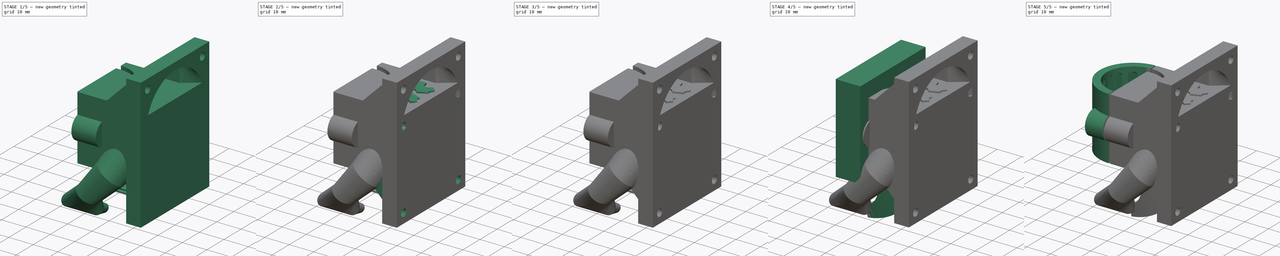
[diagram: build sequence overview — one tinted view per stage of 5, left to right]
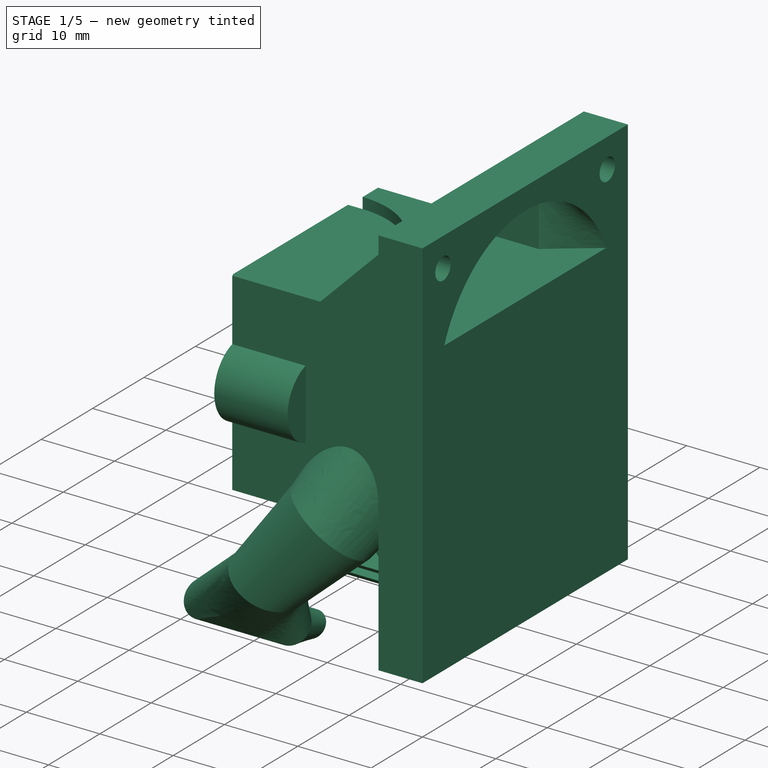
[diagram: stage 1 of 5 — iso view after this stage's code; geometry added in this stage tinted green]
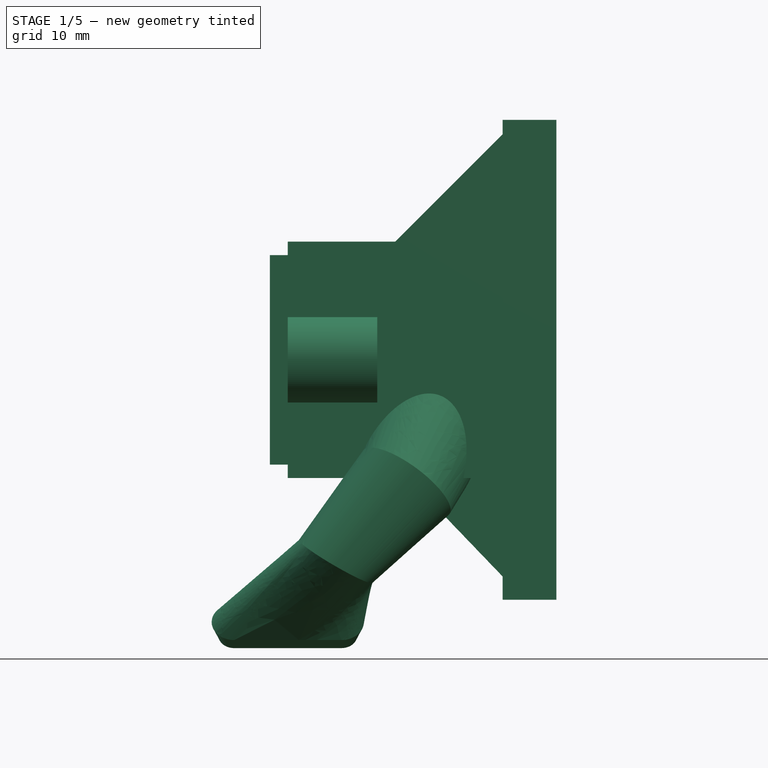
[diagram: stage 1 of 5 — front view after this stage's code; geometry added in this stage tinted green]
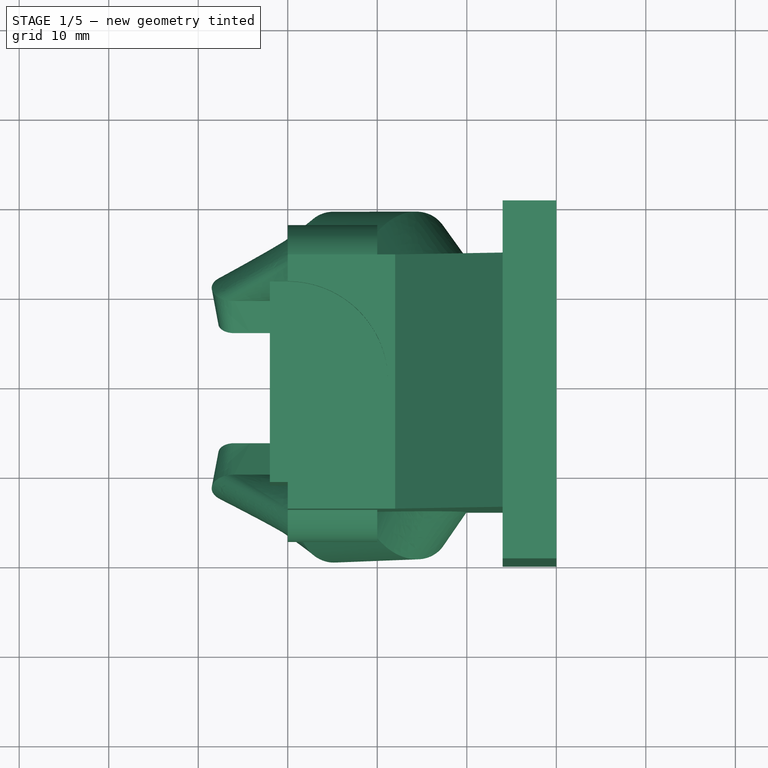
[diagram: stage 1 of 5 — top view after this stage's code; geometry added in this stage tinted green]
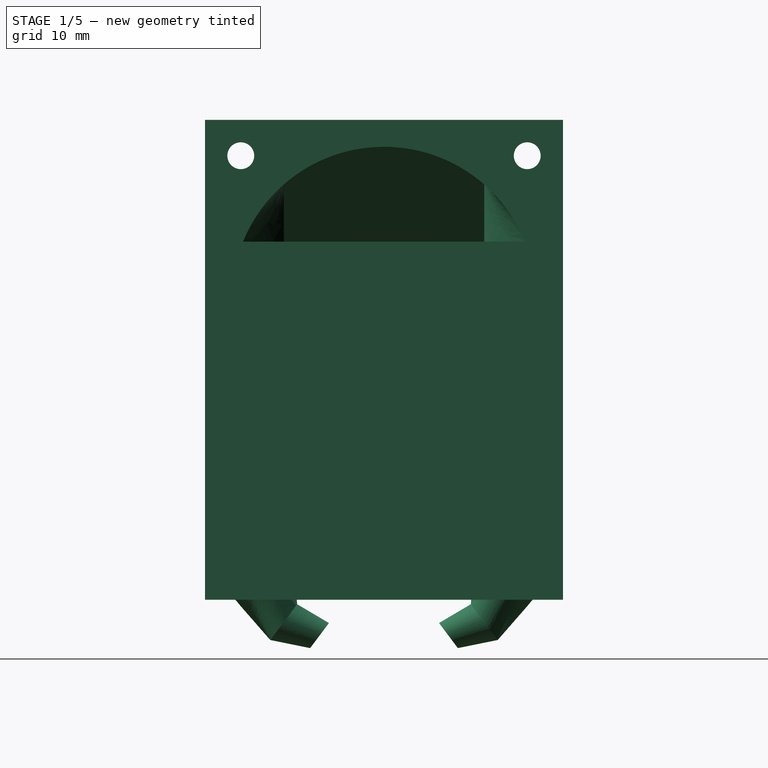
[diagram: stage 1 of 5 — right view after this stage's code; geometry added in this stage tinted green]
FCSTD DOCUMENT  (FreeCAD 0.15R4532 (Git))
Label: E3Dv6_40mmDuctedShroud_V3
License: CC-BY 3.0
LicenseURL: http://creativecommons.org/licenses/by/3.0/
objects: Sketcher::SketchObject×31, Part::Feature×10, PartDesign::Pad×8, Part::MultiFuse×8, PartDesign::Pocket×6, Part::Loft×6, Part::Cut×5, App::DocumentObjectGroup×5, PartDesign::Chamfer×2, Part::Extrusion×2, Part::Chamfer×2, Part::Box×1
note: 95 computed .brp shape members not serialized (recipe doc carries the construction recipe); baked Part::Feature solids carry a one-line shape summary decoded from their .brp

FEATURE [App::DocumentObjectGroup] Group003  label="MainBlock"
  Group = -> [Pad003,Pocket,Pocket001,Pad002,Pad,Chamfer,Fusion001,Sketch039,Cut002,Fusion003,Fusion004,Chamfer001,Chamfer002]
FEATURE [App::DocumentObjectGroup] Group  label="BaseParts"
  Group = -> [Group001,Group002,Group003]
FEATURE [Sketcher::SketchObject] Sketch067  label="MainBody003"
  Placement = pos=(0,0,19.5) rot=(0,0,1;0rad)
  sketch-geometry (12):
    g0: ArcOfCircle CenterX=0 CenterY=0 CenterZ=0 NormalX=0 NormalY=0 NormalZ=1 Radius=11.2 StartAngle=4.71239 EndAngle=7.85398
    g1: LineSegment StartX=30 StartY=20 StartZ=0 EndX=30 EndY=-20 EndZ=0
    g2: LineSegment StartX=30 StartY=-20 StartZ=0 EndX=24 EndY=-20 EndZ=0
    g3: LineSegment StartX=30 StartY=20 StartZ=0 EndX=24 EndY=20 EndZ=0
    g4: LineSegment [constr] StartX=0 StartY=11.2 StartZ=0 EndX=0 EndY=-11.2 EndZ=0
    g5: LineSegment StartX=0 StartY=11.2 StartZ=0 EndX=0 EndY=14.2 EndZ=0
    g6: LineSegment StartX=0 StartY=-11.2 StartZ=0 EndX=0 EndY=-14.2 EndZ=0
    g7: LineSegment StartX=0 StartY=14.2 StartZ=0 EndX=24 EndY=14.2 EndZ=0
    g8: LineSegment StartX=0 StartY=-14.2 StartZ=0 EndX=24 EndY=-14.2 EndZ=0
    g9: LineSegment StartX=24 StartY=14.2 StartZ=0 EndX=24 EndY=20 EndZ=0
    g10: LineSegment StartX=24 StartY=-14.2 StartZ=0 EndX=24 EndY=-20 EndZ=0
    g11: LineSegment [constr] StartX=24 StartY=14.2 StartZ=0 EndX=24 EndY=-14.2 EndZ=0
  constraints (33):
    c: Coincident(g0,g-1)
    c: Radius(g0) = 11.2
    c: Symmetric(g1,g1,g-1)
    c: Distance(g1) = 40
    c: Coincident(g2,g1)
    c: Horizontal(g2)
    c: Distance(g2) = 6
    c: Coincident(g3,g1)
    c: Horizontal(g3)
    c: Coincident(g4,g0)
    c: Vertical(g4)
    c: DistanceX(g1) = 30
    c: Coincident(g4,g0)
    c: PointOnObject(g0,g-2)
    c: Coincident(g5,g0)
    c: PointOnObject(g5,g-2)
    c: Coincident(g6,g0)
    c: Vertical(g6)
    c: Equal(g6,g5)
    c: Horizontal(g7)
    c: Horizontal(g8)
    c: Equal(g8,g7)
    c: Coincident(g9,g3)
    c: Coincident(g7,g9)
    c: Coincident(g10,g8)
    c: Coincident(g10,g2)
    c: Coincident(g11,g7)
    c: Coincident(g11,g8)
    c: Vertical(g9)
    c: Equal(g2,g3)
    c: Coincident(g7,g5)
    c: Coincident(g8,g6)
    c: Distance(g5) = 3
FEATURE [PartDesign::Pad] Pad005
  Length = 26.4
  Length2 = 100
  Placement = pos=(0,0,19.5) rot=(0,0,1;0rad)
  Sketch = -> Sketch067
  Type = 0
FEATURE [Sketcher::SketchObject] Sketch068  label="MainBody004"
  Placement = pos=(0,0,19.5) rot=(1,0,0;3.14159rad)
  Support = -> Pad005 [Face11]
  sketch-geometry (4):
    g0: LineSegment StartX=30 StartY=20 StartZ=0 EndX=30 EndY=-20 EndZ=0
    g1: LineSegment StartX=30 StartY=-20 StartZ=0 EndX=24 EndY=-20 EndZ=0
    g2: LineSegment StartX=30 StartY=20 StartZ=0 EndX=24 EndY=20 EndZ=0
    g3: LineSegment StartX=24 StartY=20 StartZ=0 EndX=24 EndY=-20 EndZ=0
  constraints (11):
    c: Symmetric(g0,g0,g-1)
    c: Distance(g0) = 40
    c: Coincident(g1,g0)
    c: Horizontal(g1)
    c: Distance(g1) = 6
    c: Coincident(g2,g0)
    c: Horizontal(g2)
    c: DistanceX(g0) = 30
    c: Equal(g1,g2)
    c: Coincident(g3,g2)
    c: Coincident(g3,g1)
FEATURE [PartDesign::Pad] Pad006
  Length = 13.6
  Length2 = 100
  Placement = pos=(0,0,19.5) rot=(0,0,1;0rad)
  Sketch = -> Sketch068
  Type = 0
FEATURE [Sketcher::SketchObject] Sketch072
  Placement = pos=(30,0,19.5) rot=(0.57735,0.57735,0.57735;2.0944rad)
  sketch-geometry (1):
    g0: Circle CenterX=0 CenterY=6.4 CenterZ=0 NormalX=0 NormalY=0 NormalZ=1 Radius=17
  constraints (3):
    c: PointOnObject(g0,g-2)
    c: Radius(g0) = 17
    c: DistanceY(g0) = 6.4
FEATURE [Sketcher::SketchObject] Sketch073
  Placement = pos=(24,0,19.5) rot=(0.57735,0.57735,0.57735;2.0944rad)
  sketch-geometry (4):
    g0: LineSegment StartX=-11.2 StartY=23.4 StartZ=0 EndX=11.2 EndY=23.4 EndZ=0
    g1: LineSegment StartX=11.2 StartY=23.4 StartZ=0 EndX=11.2 EndY=-11 EndZ=0
    g2: LineSegment StartX=11.2 StartY=-11 StartZ=0 EndX=-11.2 EndY=-11 EndZ=0
    g3: LineSegment StartX=-11.2 StartY=-11 StartZ=0 EndX=-11.2 EndY=23.4 EndZ=0
  constraints (12):
    c: Coincident(g0,g1)
    c: Coincident(g1,g2)
    c: Coincident(g2,g3)
    c: Coincident(g3,g0)
    c: Horizontal(g0)
    c: Horizontal(g2)
    c: Vertical(g1)
    c: Vertical(g3)
    c: Distance(g0) = 22.4
    c: Symmetric(g0,g0,g-2)
    c: Distance(g1) = 34.4
    c: DistanceY(g1) = -11
FEATURE [Sketcher::SketchObject] Sketch074
  Placement = pos=(12,0,19.5) rot=(0.57735,0.57735,0.57735;2.0944rad)
  sketch-geometry (4):
    g0: LineSegment StartX=-11.2 StartY=24.9 StartZ=0 EndX=11.2 EndY=24.9 EndZ=0
    g1: LineSegment StartX=11.2 StartY=24.9 StartZ=0 EndX=11.2 EndY=1.5 EndZ=0
    g2: LineSegment StartX=11.2 StartY=1.5 StartZ=0 EndX=-11.2 EndY=1.5 EndZ=0
    g3: LineSegment StartX=-11.2 StartY=1.5 StartZ=0 EndX=-11.2 EndY=24.9 EndZ=0
  constraints (12):
    c: Coincident(g0,g1)
    c: Coincident(g1,g2)
    c: Coincident(g2,g3)
    c: Coincident(g3,g0)
    c: Horizontal(g0)
    c: Horizontal(g2)
    c: Vertical(g1)
    c: Vertical(g3)
    c: Distance(g0) = 22.4
    c: Symmetric(g0,g0,g-2)
    c: Distance(g1) = 23.4
    c: DistanceY(g1) = 1.5
FEATURE [Sketcher::SketchObject] Sketch075
  Placement = pos=(-2,0,19.5) rot=(0.57735,0.57735,0.57735;2.0944rad)
  sketch-geometry (4):
    g0: LineSegment StartX=-11.2 StartY=24.9 StartZ=0 EndX=11.2 EndY=24.9 EndZ=0
    g1: LineSegment StartX=11.2 StartY=24.9 StartZ=0 EndX=11.2 EndY=1.5 EndZ=0
    g2: LineSegment StartX=11.2 StartY=1.5 StartZ=0 EndX=-11.2 EndY=1.5 EndZ=0
    g3: LineSegment StartX=-11.2 StartY=1.5 StartZ=0 EndX=-11.2 EndY=24.9 EndZ=0
  constraints (12):
    c: Coincident(g0,g1)
    c: Coincident(g1,g2)
    c: Coincident(g2,g3)
    c: Coincident(g3,g0)
    c: Horizontal(g0)
    c: Horizontal(g2)
    c: Vertical(g1)
    c: Vertical(g3)
    c: Distance(g0) = 22.4
    c: Symmetric(g0,g0,g-2)
    c: Distance(g1) = 23.4
    c: DistanceY(g1) = 1.5
FEATURE [Sketcher::SketchObject] Sketch076
  Placement = pos=(24,0,19.5) rot=(0.57735,0.57735,0.57735;2.0944rad)
  sketch-geometry (4):
    g0: LineSegment StartX=-11.2 StartY=23.4 StartZ=0 EndX=11.2 EndY=23.4 EndZ=0
    g1: LineSegment StartX=11.2 StartY=23.4 StartZ=0 EndX=11.2 EndY=-11 EndZ=0
    g2: LineSegment StartX=11.2 StartY=-11 StartZ=0 EndX=-11.2 EndY=-11 EndZ=0
    g3: LineSegment StartX=-11.2 StartY=-11 StartZ=0 EndX=-11.2 EndY=23.4 EndZ=0
  constraints (12):
    c: Coincident(g0,g1)
    c: Coincident(g1,g2)
    c: Coincident(g2,g3)
    c: Coincident(g3,g0)
    c: Horizontal(g0)
    c: Horizontal(g2)
    c: Vertical(g1)
    c: Vertical(g3)
    c: Distance(g0) = 22.4
    c: Symmetric(g0,g0,g-2)
    c: Distance(g1) = 34.4
    c: DistanceY(g1) = -11
FEATURE [Part::Loft] Loft007
  Closed = false
  Ruled = false
  Sections = -> [Sketch072,Sketch076]
  Solid = true
FEATURE [Part::Loft] Loft008
  Closed = false
  Ruled = true
  Sections = -> [Sketch073,Sketch074,Sketch075]
  Solid = true
FEATURE [Part::MultiFuse] Fusion005
  Shapes = -> [Loft007,Loft008]
FEATURE [Part::Feature] Chamfer004
  Placement = pos=(0,0,45.9) rot=(1,0,0;3.14159rad)
  shape: bbox 30 x 40 x 40 mm, 25 faces (baked)
FEATURE [Part::Feature] Fusion006
  Placement = pos=(0,0,65.4) rot=(1,0,0;3.14159rad)
  shape: bbox 32 x 34.97 x 35.91 mm, 15 faces (baked)
FEATURE [Part::Feature] Loft009  label="RightNozzleInner001"
  shape: bbox 31.53 x 23.47 x 36.35 mm, 46 faces (baked)
FEATURE [Part::Feature] Loft010  label="RightNozzleOuter001"
  shape: bbox 33.69 x 25.68 x 38.16 mm, 46 faces (baked)
FEATURE [Part::Feature] Part__Mirroring002  label="LeftNozzleInner"
  shape: bbox 31.53 x 23.47 x 36.35 mm, 46 faces (baked)
FEATURE [Part::Feature] Part__Mirroring003  label="LeftNozzleOuter"
  shape: bbox 33.69 x 25.68 x 38.16 mm, 46 faces (baked)
FEATURE [Part::MultiFuse] Fusion007
  Shapes = -> [Loft010,Part__Mirroring003,Chamfer004]
FEATURE [Part::MultiFuse] Fusion008
  Shapes = -> [Loft009,Part__Mirroring002,Fusion006]
FEATURE [Part::Cut] Cut004  label="V3Duct_V2Nozzles"
  Base = -> Fusion007
  Tool = -> Fusion008
FEATURE [Part::Feature] Cut005  label="V3Duct_V2Nozzles002"
  shape: bbox 38.7 x 40 x 59 mm, 215 faces (baked)
FEATURE [App::DocumentObjectGroup] Group004  label="V3Duct_V2Nozzles001"
  Group = -> [Pad005,Pad006,Pocket004,Pad007,Pocket005,Chamfer003,Fusion005,Cut004,Cut005]
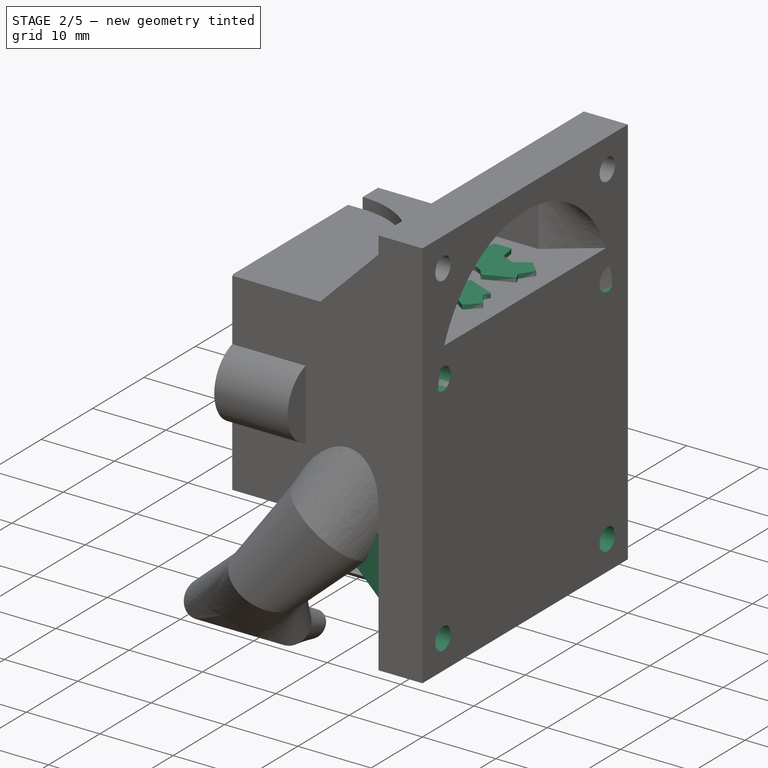
[diagram: stage 2 of 5 — iso view after this stage's code; geometry added in this stage tinted green]
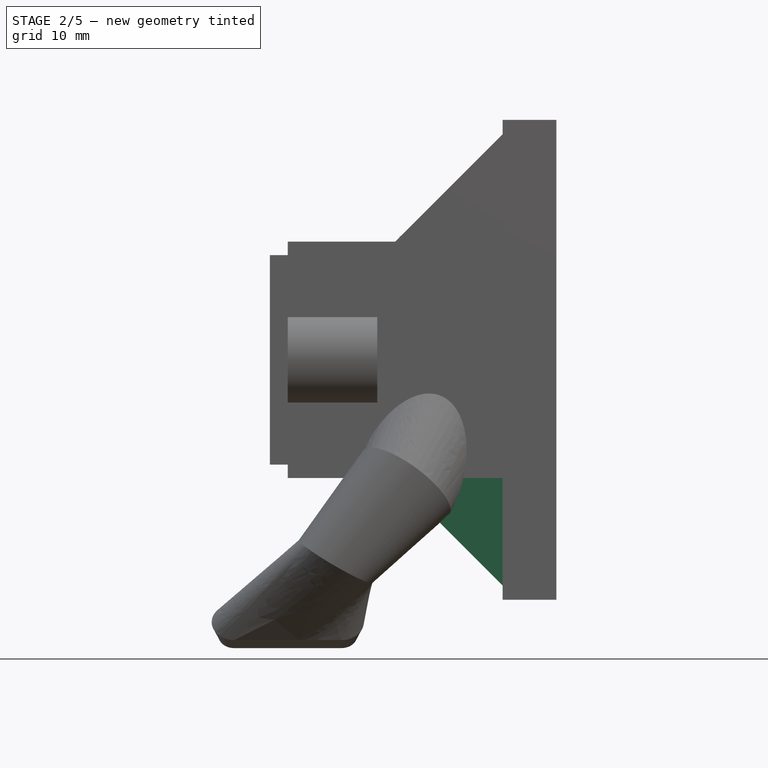
[diagram: stage 2 of 5 — front view after this stage's code; geometry added in this stage tinted green]
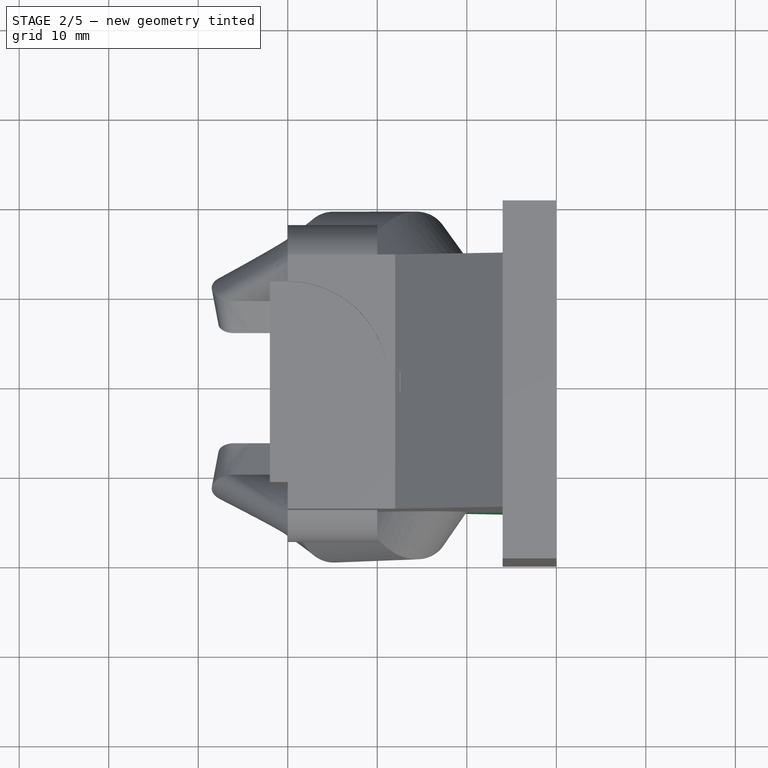
[diagram: stage 2 of 5 — top view after this stage's code; geometry added in this stage tinted green]
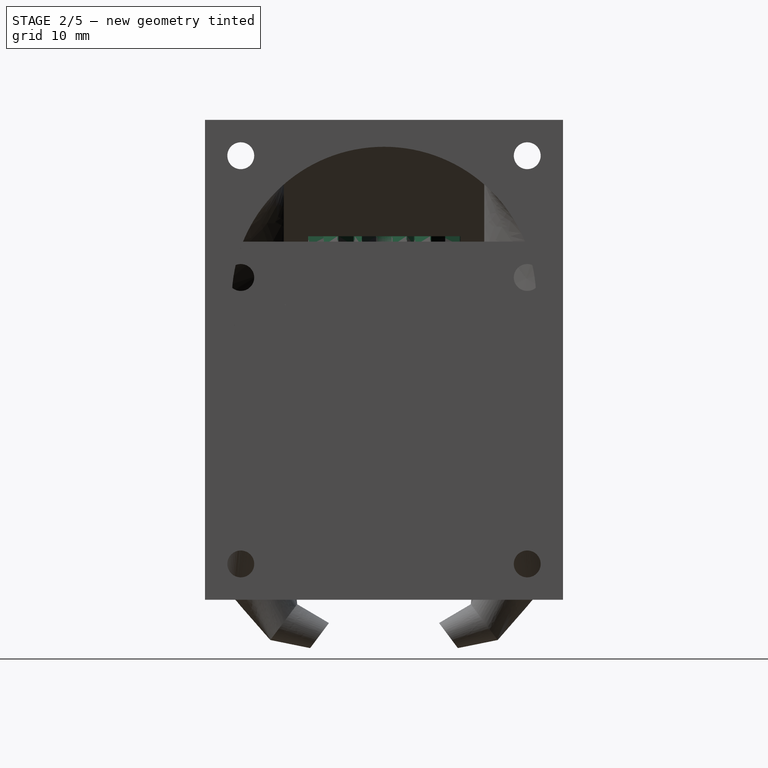
[diagram: stage 2 of 5 — right view after this stage's code; geometry added in this stage tinted green]
FEATURE [Sketcher::SketchObject] Sketch049
  Placement = pos=(6,0,25.5) rot=(0.678598,-0.678598,-0.281085;2.59356rad)
  Support = -> Chamfer [Face3]
  sketch-geometry (4):
    g0: LineSegment StartX=-11.2 StartY=-11 StartZ=0 EndX=11.2 EndY=-11 EndZ=0
    g1: LineSegment StartX=11.2 StartY=-11 StartZ=0 EndX=11.2 EndY=-23 EndZ=0
    g2: LineSegment StartX=11.2 StartY=-23 StartZ=0 EndX=-11.2 EndY=-23 EndZ=0
    g3: LineSegment StartX=-11.2 StartY=-23 StartZ=0 EndX=-11.2 EndY=-11 EndZ=0
  constraints (11):
    c: Coincident(g0,g1)
    c: Coincident(g1,g2)
    c: Coincident(g2,g3)
    c: Coincident(g3,g0)
    c: Horizontal(g0)
    c: Horizontal(g2)
    c: Vertical(g1)
    c: Vertical(g3)
    c: Symmetric(g1,g2,g-2)
    c: Distance(g2) = 22.4
    c: Distance(g1) = 12
FEATURE [Sketcher::SketchObject] Sketch052
  Placement = pos=(30,0,19.5) rot=(0.57735,0.57735,0.57735;2.0944rad)
  sketch-geometry (1):
    g0: Circle CenterX=0 CenterY=6.4 CenterZ=0 NormalX=0 NormalY=0 NormalZ=1 Radius=17
  constraints (3):
    c: PointOnObject(g0,g-2)
    c: Radius(g0) = 17
    c: DistanceY(g0) = 6.4
FEATURE [Sketcher::SketchObject] Sketch053
  Placement = pos=(24,0,19.5) rot=(0.57735,0.57735,0.57735;2.0944rad)
  sketch-geometry (4):
    g0: LineSegment StartX=-11.2 StartY=23.4 StartZ=0 EndX=11.2 EndY=23.4 EndZ=0
    g1: LineSegment StartX=11.2 StartY=23.4 StartZ=0 EndX=11.2 EndY=-11 EndZ=0
    g2: LineSegment StartX=11.2 StartY=-11 StartZ=0 EndX=-11.2 EndY=-11 EndZ=0
    g3: LineSegment StartX=-11.2 StartY=-11 StartZ=0 EndX=-11.2 EndY=23.4 EndZ=0
  constraints (12):
    c: Coincident(g0,g1)
    c: Coincident(g1,g2)
    c: Coincident(g2,g3)
    c: Coincident(g3,g0)
    c: Horizontal(g0)
    c: Horizontal(g2)
    c: Vertical(g1)
    c: Vertical(g3)
    c: Distance(g0) = 22.4
    c: Symmetric(g0,g0,g-2)
    c: Distance(g1) = 34.4
    c: DistanceY(g1) = -11
FEATURE [Sketcher::SketchObject] Sketch054
  Placement = pos=(12,0,19.5) rot=(0.57735,0.57735,0.57735;2.0944rad)
  sketch-geometry (4):
    g0: LineSegment StartX=-11.2 StartY=24.9 StartZ=0 EndX=11.2 EndY=24.9 EndZ=0
    g1: LineSegment StartX=11.2 StartY=24.9 StartZ=0 EndX=11.2 EndY=1.5 EndZ=0
    g2: LineSegment StartX=11.2 StartY=1.5 StartZ=0 EndX=-11.2 EndY=1.5 EndZ=0
    g3: LineSegment StartX=-11.2 StartY=1.5 StartZ=0 EndX=-11.2 EndY=24.9 EndZ=0
  constraints (12):
    c: Coincident(g0,g1)
    c: Coincident(g1,g2)
    c: Coincident(g2,g3)
    c: Coincident(g3,g0)
    c: Horizontal(g0)
    c: Horizontal(g2)
    c: Vertical(g1)
    c: Vertical(g3)
    c: Distance(g0) = 22.4
    c: Symmetric(g0,g0,g-2)
    c: Distance(g1) = 23.4
    c: DistanceY(g1) = 1.5
FEATURE [Sketcher::SketchObject] Sketch055
  Placement = pos=(-2,0,19.5) rot=(0.57735,0.57735,0.57735;2.0944rad)
  sketch-geometry (4):
    g0: LineSegment StartX=-11.2 StartY=24.9 StartZ=0 EndX=11.2 EndY=24.9 EndZ=0
    g1: LineSegment StartX=11.2 StartY=24.9 StartZ=0 EndX=11.2 EndY=1.5 EndZ=0
    g2: LineSegment StartX=11.2 StartY=1.5 StartZ=0 EndX=-11.2 EndY=1.5 EndZ=0
    g3: LineSegment StartX=-11.2 StartY=1.5 StartZ=0 EndX=-11.2 EndY=24.9 EndZ=0
  constraints (12):
    c: Coincident(g0,g1)
    c: Coincident(g1,g2)
    c: Coincident(g2,g3)
    c: Coincident(g3,g0)
    c: Horizontal(g0)
    c: Horizontal(g2)
    c: Vertical(g1)
    c: Vertical(g3)
    c: Distance(g0) = 22.4
    c: Symmetric(g0,g0,g-2)
    c: Distance(g1) = 23.4
    c: DistanceY(g1) = 1.5
FEATURE [Sketcher::SketchObject] Sketch056
  Placement = pos=(24,0,19.5) rot=(0.57735,0.57735,0.57735;2.0944rad)
  sketch-geometry (4):
    g0: LineSegment StartX=-11.2 StartY=23.4 StartZ=0 EndX=11.2 EndY=23.4 EndZ=0
    g1: LineSegment StartX=11.2 StartY=23.4 StartZ=0 EndX=11.2 EndY=-11 EndZ=0
    g2: LineSegment StartX=11.2 StartY=-11 StartZ=0 EndX=-11.2 EndY=-11 EndZ=0
    g3: LineSegment StartX=-11.2 StartY=-11 StartZ=0 EndX=-11.2 EndY=23.4 EndZ=0
  constraints (12):
    c: Coincident(g0,g1)
    c: Coincident(g1,g2)
    c: Coincident(g2,g3)
    c: Coincident(g3,g0)
    c: Horizontal(g0)
    c: Horizontal(g2)
    c: Vertical(g1)
    c: Vertical(g3)
    c: Distance(g0) = 22.4
    c: Symmetric(g0,g0,g-2)
    c: Distance(g1) = 34.4
    c: DistanceY(g1) = -11
FEATURE [Part::Loft] Loft003
  Closed = false
  Ruled = false
  Sections = -> [Sketch052,Sketch056]
  Solid = true
FEATURE [Part::Loft] Loft004
  Closed = false
  Ruled = true
  Sections = -> [Sketch053,Sketch054,Sketch055]
  Solid = true
FEATURE [Part::MultiFuse] Fusion
  Shapes = -> [Loft003,Loft004]
FEATURE [Part::Feature] Scale001  label="OSHW_logo001"
  Placement = pos=(17,-36.6,59) rot=(0,0,1;1.5708rad)
  shape: bbox 15.31 x 17 x 2e-07 mm, 1 faces, 0 solids (baked)
FEATURE [App::DocumentObjectGroup] Group001  label="OSHW_logo"
  Group = -> [Face,Scale001]
FEATURE [Part::Extrusion] Extrude001
  Base = -> Scale001
  Dir = (0,0,1)
  Placement = pos=(0,0,-13.5) rot=(0,0,1;0rad)
  Solid = false
FEATURE [Sketcher::SketchObject] Sketch070
  Placement = pos=(30,0,19.5) rot=(0.57735,0.57735,0.57735;2.0944rad)
  Support = -> Pad006 [Face11]
  sketch-geometry (8):
    g0: LineSegment [constr] StartX=-16 StartY=22.4 StartZ=0 EndX=16 EndY=22.4 EndZ=0
    g1: LineSegment [constr] StartX=-16 StartY=22.4 StartZ=0 EndX=-16 EndY=-9.6 EndZ=0
    g2: LineSegment [constr] StartX=16 StartY=22.4 StartZ=0 EndX=16 EndY=-9.6 EndZ=0
    g3: LineSegment [constr] StartX=16 StartY=-9.6 StartZ=0 EndX=-16 EndY=-9.6 EndZ=0
    g4: Circle CenterX=-16 CenterY=22.4 CenterZ=0 NormalX=0 NormalY=0 NormalZ=1 Radius=1.5
    g5: Circle CenterX=16 CenterY=22.4 CenterZ=0 NormalX=0 NormalY=0 NormalZ=1 Radius=1.5
    g6: Circle CenterX=16 CenterY=-9.6 CenterZ=0 NormalX=0 NormalY=0 NormalZ=1 Radius=1.5
    g7: Circle CenterX=-16 CenterY=-9.6 CenterZ=0 NormalX=0 NormalY=0 NormalZ=1 Radius=1.5
  constraints (20):
    c: Horizontal(g0)
    c: Distance(g0) = 32
    c: Coincident(g1,g0)
    c: Vertical(g1)
    c: Distance(g1) = 32
    c: Coincident(g2,g0)
    c: Vertical(g2)
    c: Coincident(g3,g2)
    c: Coincident(g3,g1)
    c: Horizontal(g3)
    c: Symmetric(g2,g1,g-2)
    c: DistanceY(g2) = -9.6
    c: Coincident(g4,g0)
    c: Radius(g4) = 1.5
    c: Coincident(g5,g0)
    c: Coincident(g6,g2)
    c: Coincident(g7,g1)
    c: Equal(g4,g5)
    c: Equal(g5,g6)
    c: Equal(g6,g7)
FEATURE [PartDesign::Pocket] Pocket004
  Length = 6
  Placement = pos=(0,0,19.5) rot=(0,0,1;0rad)
  Sketch = -> Sketch070
  Type = 0
FEATURE [Sketcher::SketchObject] Sketch069
  Placement = pos=(0,0,19.5) rot=(-0.57735,0.57735,0.57735;4.18879rad)
  Support = -> Pocket004 [Face6]
  sketch-geometry (6):
    g0: LineSegment [constr] StartX=-14.2 StartY=13.2 StartZ=0 EndX=14.2 EndY=13.2 EndZ=0
    g1: ArcOfCircle CenterX=-12.7 CenterY=13.2 CenterZ=0 NormalX=0 NormalY=0 NormalZ=1 Radius=5 StartAngle=1.2661 EndAngle=5.01708
    g2: LineSegment StartX=-11.2 StartY=17.9697 StartZ=0 EndX=-11.2 EndY=8.4303 EndZ=0
    g3: ArcOfCircle CenterX=12.7 CenterY=13.2 CenterZ=0 NormalX=0 NormalY=0 NormalZ=1 Radius=5 StartAngle=4.4077 EndAngle=8.15867
    g4: LineSegment StartX=11.2 StartY=17.9697 StartZ=0 EndX=11.2 EndY=8.4303 EndZ=0
    g5: LineSegment [constr] StartX=-11.2 StartY=17.9697 StartZ=0 EndX=11.2 EndY=17.9697 EndZ=0
  constraints (18):
    c: Horizontal(g0)
    c: Symmetric(g0,g0,g-2)
    c: DistanceY(g0) = 13.2
    c: Distance(g0) = 28.4
    c: PointOnObject(g1,g0)
    c: Coincident(g2,g1)
    c: Vertical(g2)
    c: Coincident(g1,g2)
    c: Radius(g1) = 5
    c: PointOnObject(g3,g0)
    c: Coincident(g4,g3)
    c: Coincident(g4,g3)
    c: Vertical(g4)
    c: Equal(g3,g1)
    c: Coincident(g5,g1)
    c: Coincident(g5,g3)
    c: Horizontal(g5)
    c: Distance(g5) = 22.4
FEATURE [PartDesign::Pad] Pad007
  Length = 10
  Length2 = 100
  Placement = pos=(0,0,19.5) rot=(0,0,1;0rad)
  Reversed = true
  Sketch = -> Sketch069
  Type = 0
FEATURE [Sketcher::SketchObject] Sketch071
  Placement = pos=(0,0,19.5) rot=(-0.57735,0.57735,0.57735;4.18879rad)
  Support = -> Pad007 [Face20]
  sketch-geometry (8):
    g0: LineSegment [constr] StartX=-14.2 StartY=13.2 StartZ=0 EndX=14.2 EndY=13.2 EndZ=0
    g1: Circle CenterX=-14.2 CenterY=13.2 CenterZ=0 NormalX=0 NormalY=0 NormalZ=1 Radius=1.5
    g2: Circle CenterX=14.2 CenterY=13.2 CenterZ=0 NormalX=0 NormalY=0 NormalZ=1 Radius=1.5
    g3: ArcOfCircle [constr] CenterX=-12.7 CenterY=13.2 CenterZ=0 NormalX=0 NormalY=0 NormalZ=1 Radius=5 StartAngle=1.2661 EndAngle=5.01708
    g4: LineSegment [constr] StartX=-11.2 StartY=17.9697 StartZ=0 EndX=-11.2 EndY=8.4303 EndZ=0
    g5: ArcOfCircle [constr] CenterX=12.7 CenterY=13.2 CenterZ=0 NormalX=0 NormalY=0 NormalZ=1 Radius=5 StartAngle=4.4077 EndAngle=8.15867
    g6: LineSegment [constr] StartX=11.2 StartY=17.9697 StartZ=0 EndX=11.2 EndY=8.4303 EndZ=0
    g7: LineSegment [constr] StartX=-11.2 StartY=17.9697 StartZ=0 EndX=11.2 EndY=17.9697 EndZ=0
  constraints (24):
    c: Horizontal(g0)
    c: Symmetric(g0,g0,g-2)
    c: Coincident(g1,g0)
    c: Radius(g1) = 1.5
    c: Coincident(g2,g0)
    c: Equal(g2,g1)
    c: DistanceY(g0) = 13.2
    c: Distance(g0) = 28.4
    c: PointOnObject(g3,g0)
    c: PointOnObject(g3,g1)
    c: Coincident(g4,g3)
    c: Vertical(g4)
    c: Coincident(g3,g4)
    c: Radius(g3) = 5
    c: PointOnObject(g5,g0)
    c: PointOnObject(g5,g2)
    c: Coincident(g6,g5)
    c: Coincident(g6,g5)
    c: Vertical(g6)
    c: Equal(g5,g3)
    c: Coincident(g7,g3)
    c: Coincident(g7,g5)
    c: Horizontal(g7)
    c: Distance(g7) = 22.4
FEATURE [PartDesign::Pocket] Pocket005
  Length = 9
  Placement = pos=(0,0,19.5) rot=(0,0,1;0rad)
  Sketch = -> Sketch071
  Type = 0
FEATURE [PartDesign::Chamfer] Chamfer003
  Base = -> Pocket005 [Edge3]
  Placement = pos=(0,0,19.5) rot=(0,0,1;0rad)
  Size = 12
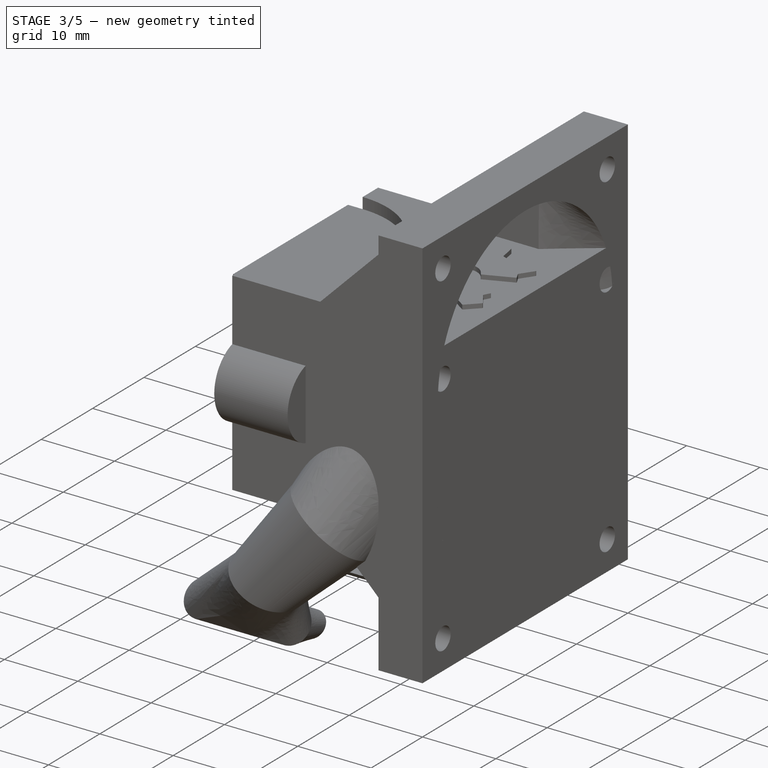
[diagram: stage 3 of 5 — iso view after this stage's code; geometry added in this stage tinted green]
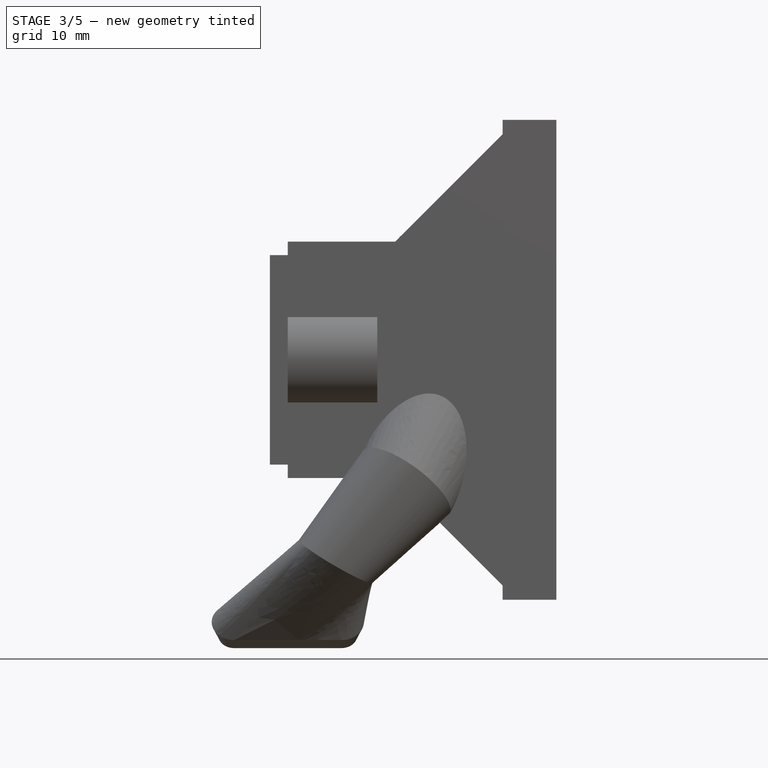
[diagram: stage 3 of 5 — front view after this stage's code; geometry added in this stage tinted green]
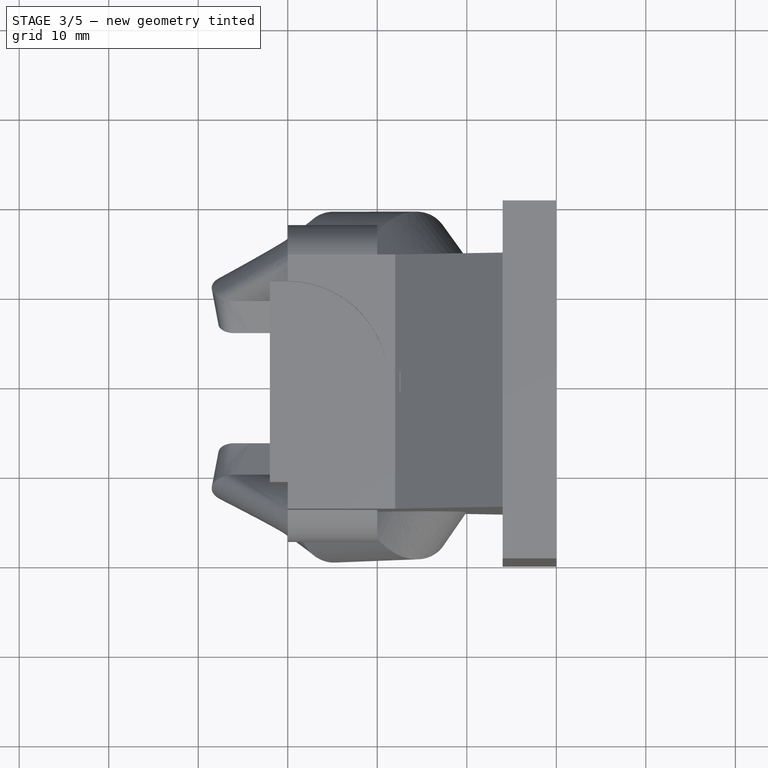
[diagram: stage 3 of 5 — top view after this stage's code; geometry added in this stage tinted green]
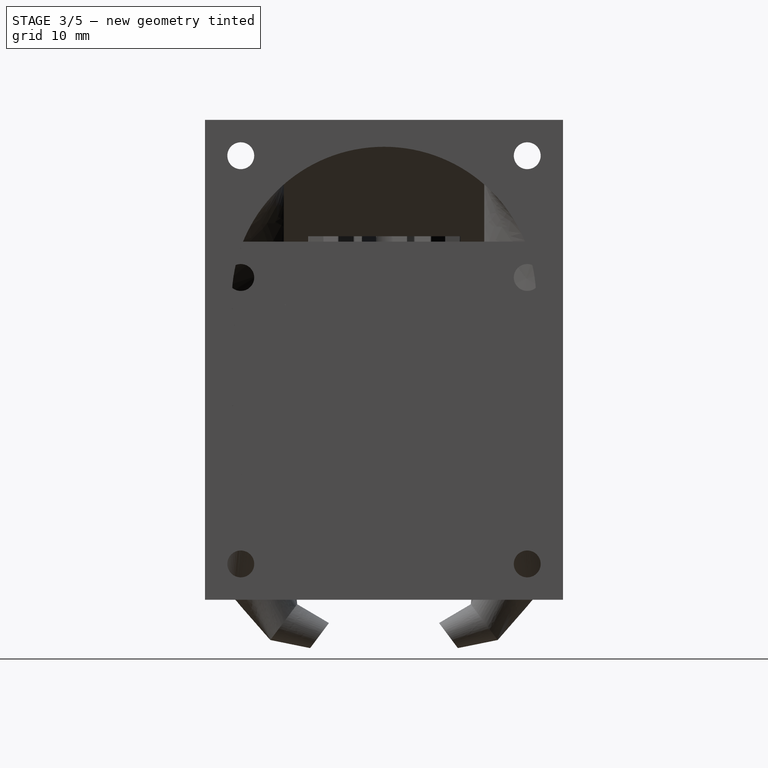
[diagram: stage 3 of 5 — right view after this stage's code; geometry added in this stage tinted green]
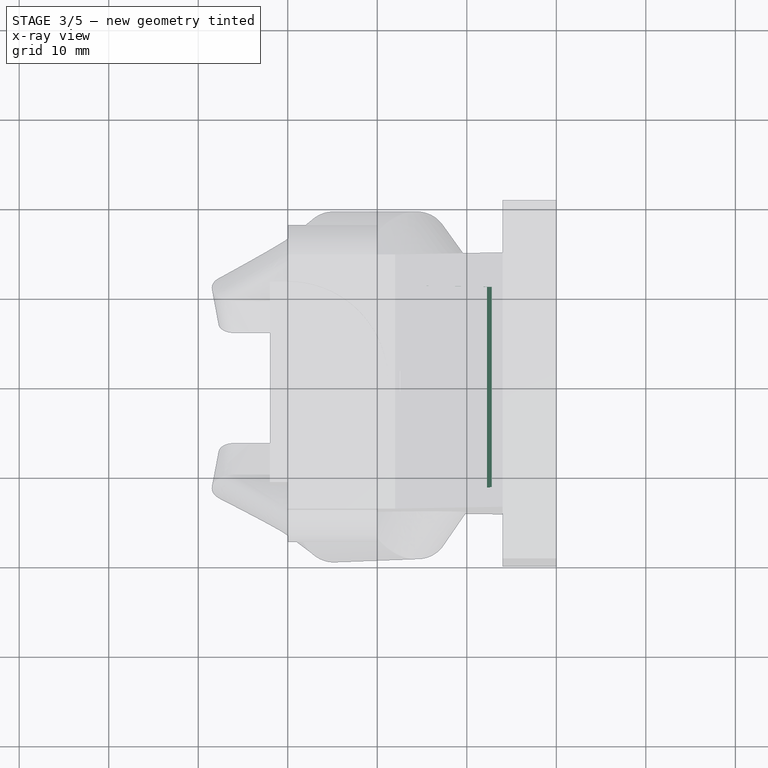
[diagram: stage 3 of 5 — x-ray composite at the top view; earlier geometry ghosted, this stage's added geometry solid]
FEATURE [Part::Feature] Part__Feature  label="E3Dv6"
  Placement = pos=(0,0,41) rot=(1,0,0;1.5708rad)
  shape: bbox 26.65 x 22.3 x 62.3 mm, 111 faces (baked)
FEATURE [Sketcher::SketchObject] Sketch  label="MainBody"
  Placement = pos=(0,0,19.5) rot=(0,0,1;0rad)
  sketch-geometry (12):
    g0: ArcOfCircle CenterX=0 CenterY=0 CenterZ=0 NormalX=0 NormalY=0 NormalZ=1 Radius=11.2 StartAngle=4.71239 EndAngle=7.85398
    g1: LineSegment StartX=30 StartY=20 StartZ=0 EndX=30 EndY=-20 EndZ=0
    g2: LineSegment StartX=30 StartY=-20 StartZ=0 EndX=24 EndY=-20 EndZ=0
    g3: LineSegment StartX=30 StartY=20 StartZ=0 EndX=24 EndY=20 EndZ=0
    g4: LineSegment [constr] StartX=0 StartY=11.2 StartZ=0 EndX=0 EndY=-11.2 EndZ=0
    g5: LineSegment StartX=0 StartY=11.2 StartZ=0 EndX=0 EndY=14.2 EndZ=0
    g6: LineSegment StartX=0 StartY=-11.2 StartZ=0 EndX=0 EndY=-14.2 EndZ=0
    g7: LineSegment StartX=0 StartY=14.2 StartZ=0 EndX=24 EndY=14.2 EndZ=0
    g8: LineSegment StartX=0 StartY=-14.2 StartZ=0 EndX=24 EndY=-14.2 EndZ=0
    g9: LineSegment StartX=24 StartY=14.2 StartZ=0 EndX=24 EndY=20 EndZ=0
    g10: LineSegment StartX=24 StartY=-14.2 StartZ=0 EndX=24 EndY=-20 EndZ=0
    g11: LineSegment [constr] StartX=24 StartY=14.2 StartZ=0 EndX=24 EndY=-14.2 EndZ=0
  constraints (33):
    c: Coincident(g0,g-1)
    c: Radius(g0) = 11.2
    c: Symmetric(g1,g1,g-1)
    c: Distance(g1) = 40
    c: Coincident(g2,g1)
    c: Horizontal(g2)
    c: Distance(g2) = 6
    c: Coincident(g3,g1)
    c: Horizontal(g3)
    c: Coincident(g4,g0)
    c: Vertical(g4)
    c: DistanceX(g1) = 30
    c: Coincident(g4,g0)
    c: PointOnObject(g0,g-2)
    c: Coincident(g5,g0)
    c: PointOnObject(g5,g-2)
    c: Coincident(g6,g0)
    c: Vertical(g6)
    c: Equal(g6,g5)
    c: Horizontal(g7)
    c: Horizontal(g8)
    c: Equal(g8,g7)
    c: Coincident(g9,g3)
    c: Coincident(g7,g9)
    c: Coincident(g10,g8)
    c: Coincident(g10,g2)
    c: Coincident(g11,g7)
    c: Coincident(g11,g8)
    c: Vertical(g9)
    c: Equal(g2,g3)
    c: Coincident(g7,g5)
    c: Coincident(g8,g6)
    c: Distance(g5) = 3
FEATURE [PartDesign::Pad] Pad
  Length = 26.4
  Length2 = 100
  Placement = pos=(0,0,19.5) rot=(0,0,1;0rad)
  Sketch = -> Sketch
  Type = 0
FEATURE [PartDesign::Pad] Pad002
  Length = 13.6
  Length2 = 100
  Placement = pos=(0,0,19.5) rot=(0,0,1;0rad)
  Sketch = -> Sketch032
  Type = 0
FEATURE [Sketcher::SketchObject] Sketch029
  Placement = pos=(30,0,19.5) rot=(0.57735,0.57735,0.57735;2.0944rad)
  Support = -> Pad002 [Face11]
  sketch-geometry (8):
    g0: LineSegment [constr] StartX=-16 StartY=22.4 StartZ=0 EndX=16 EndY=22.4 EndZ=0
    g1: LineSegment [constr] StartX=-16 StartY=22.4 StartZ=0 EndX=-16 EndY=-9.6 EndZ=0
    g2: LineSegment [constr] StartX=16 StartY=22.4 StartZ=0 EndX=16 EndY=-9.6 EndZ=0
    g3: LineSegment [constr] StartX=16 StartY=-9.6 StartZ=0 EndX=-16 EndY=-9.6 EndZ=0
    g4: Circle CenterX=-16 CenterY=22.4 CenterZ=0 NormalX=0 NormalY=0 NormalZ=1 Radius=1.5
    g5: Circle CenterX=16 CenterY=22.4 CenterZ=0 NormalX=0 NormalY=0 NormalZ=1 Radius=1.5
    g6: Circle CenterX=16 CenterY=-9.6 CenterZ=0 NormalX=0 NormalY=0 NormalZ=1 Radius=1.5
    g7: Circle CenterX=-16 CenterY=-9.6 CenterZ=0 NormalX=0 NormalY=0 NormalZ=1 Radius=1.5
  constraints (20):
    c: Horizontal(g0)
    c: Distance(g0) = 32
    c: Coincident(g1,g0)
    c: Vertical(g1)
    c: Distance(g1) = 32
    c: Coincident(g2,g0)
    c: Vertical(g2)
    c: Coincident(g3,g2)
    c: Coincident(g3,g1)
    c: Horizontal(g3)
    c: Symmetric(g2,g1,g-2)
    c: DistanceY(g2) = -9.6
    c: Coincident(g4,g0)
    c: Radius(g4) = 1.5
    c: Coincident(g5,g0)
    c: Coincident(g6,g2)
    c: Coincident(g7,g1)
    c: Equal(g4,g5)
    c: Equal(g5,g6)
    c: Equal(g6,g7)
FEATURE [PartDesign::Pocket] Pocket001
  Length = 6
  Placement = pos=(0,0,19.5) rot=(0,0,1;0rad)
  Sketch = -> Sketch029
  Type = 0
FEATURE [Sketcher::SketchObject] Sketch034
  Placement = pos=(0,0,19.5) rot=(-0.57735,0.57735,0.57735;4.18879rad)
  Support = -> Pocket001 [Face6]
  sketch-geometry (6):
    g0: LineSegment [constr] StartX=-14.2 StartY=13.2 StartZ=0 EndX=14.2 EndY=13.2 EndZ=0
    g1: ArcOfCircle CenterX=-12.7 CenterY=13.2 CenterZ=0 NormalX=0 NormalY=0 NormalZ=1 Radius=5 StartAngle=1.2661 EndAngle=5.01708
    g2: LineSegment StartX=-11.2 StartY=17.9697 StartZ=0 EndX=-11.2 EndY=8.4303 EndZ=0
    g3: ArcOfCircle CenterX=12.7 CenterY=13.2 CenterZ=0 NormalX=0 NormalY=0 NormalZ=1 Radius=5 StartAngle=4.4077 EndAngle=8.15867
    g4: LineSegment StartX=11.2 StartY=17.9697 StartZ=0 EndX=11.2 EndY=8.4303 EndZ=0
    g5: LineSegment [constr] StartX=-11.2 StartY=17.9697 StartZ=0 EndX=11.2 EndY=17.9697 EndZ=0
  constraints (18):
    c: Horizontal(g0)
    c: Symmetric(g0,g0,g-2)
    c: DistanceY(g0) = 13.2
    c: Distance(g0) = 28.4
    c: PointOnObject(g1,g0)
    c: Coincident(g2,g1)
    c: Vertical(g2)
    c: Coincident(g1,g2)
    c: Radius(g1) = 5
    c: PointOnObject(g3,g0)
    c: Coincident(g4,g3)
    c: Coincident(g4,g3)
    c: Vertical(g4)
    c: Equal(g3,g1)
    c: Coincident(g5,g1)
    c: Coincident(g5,g3)
    c: Horizontal(g5)
    c: Distance(g5) = 22.4
FEATURE [PartDesign::Pad] Pad003
  Length = 10
  Length2 = 100
  Placement = pos=(0,0,19.5) rot=(0,0,1;0rad)
  Reversed = true
  Sketch = -> Sketch034
  Type = 0
FEATURE [Sketcher::SketchObject] Sketch035
  Placement = pos=(0,0,19.5) rot=(-0.57735,0.57735,0.57735;4.18879rad)
  Support = -> Pad003 [Face20]
  sketch-geometry (8):
    g0: LineSegment [constr] StartX=-14.2 StartY=13.2 StartZ=0 EndX=14.2 EndY=13.2 EndZ=0
    g1: Circle CenterX=-14.2 CenterY=13.2 CenterZ=0 NormalX=0 NormalY=0 NormalZ=1 Radius=1.5
    g2: Circle CenterX=14.2 CenterY=13.2 CenterZ=0 NormalX=0 NormalY=0 NormalZ=1 Radius=1.5
    g3: ArcOfCircle [constr] CenterX=-12.7 CenterY=13.2 CenterZ=0 NormalX=0 NormalY=0 NormalZ=1 Radius=5 StartAngle=1.2661 EndAngle=5.01708
    g4: LineSegment [constr] StartX=-11.2 StartY=17.9697 StartZ=0 EndX=-11.2 EndY=8.4303 EndZ=0
    g5: ArcOfCircle [constr] CenterX=12.7 CenterY=13.2 CenterZ=0 NormalX=0 NormalY=0 NormalZ=1 Radius=5 StartAngle=4.4077 EndAngle=8.15867
    g6: LineSegment [constr] StartX=11.2 StartY=17.9697 StartZ=0 EndX=11.2 EndY=8.4303 EndZ=0
    g7: LineSegment [constr] StartX=-11.2 StartY=17.9697 StartZ=0 EndX=11.2 EndY=17.9697 EndZ=0
  constraints (24):
    c: Horizontal(g0)
    c: Symmetric(g0,g0,g-2)
    c: Coincident(g1,g0)
    c: Radius(g1) = 1.5
    c: Coincident(g2,g0)
    c: Equal(g2,g1)
    c: DistanceY(g0) = 13.2
    c: Distance(g0) = 28.4
    c: PointOnObject(g3,g0)
    c: PointOnObject(g3,g1)
    c: Coincident(g4,g3)
    c: Vertical(g4)
    c: Coincident(g3,g4)
    c: Radius(g3) = 5
    c: PointOnObject(g5,g0)
    c: PointOnObject(g5,g2)
    c: Coincident(g6,g5)
    c: Coincident(g6,g5)
    c: Vertical(g6)
    c: Equal(g5,g3)
    c: Coincident(g7,g3)
    c: Coincident(g7,g5)
    c: Horizontal(g7)
    c: Distance(g7) = 22.4
FEATURE [PartDesign::Pocket] Pocket
  Length = 9
  Placement = pos=(0,0,19.5) rot=(0,0,1;0rad)
  Sketch = -> Sketch035
  Type = 0
FEATURE [PartDesign::Chamfer] Chamfer
  Base = -> Pocket [Edge3]
  Placement = pos=(0,0,19.5) rot=(0,0,1;0rad)
  Size = 12
FEATURE [PartDesign::Pocket] Pocket003
  Length = 18
  Placement = pos=(0,0,19.5) rot=(0,0,1;0rad)
  Sketch = -> Sketch049
  Type = 1
FEATURE [Part::Cut] Cut001
  Base = -> Pocket003
  Tool = -> Fusion
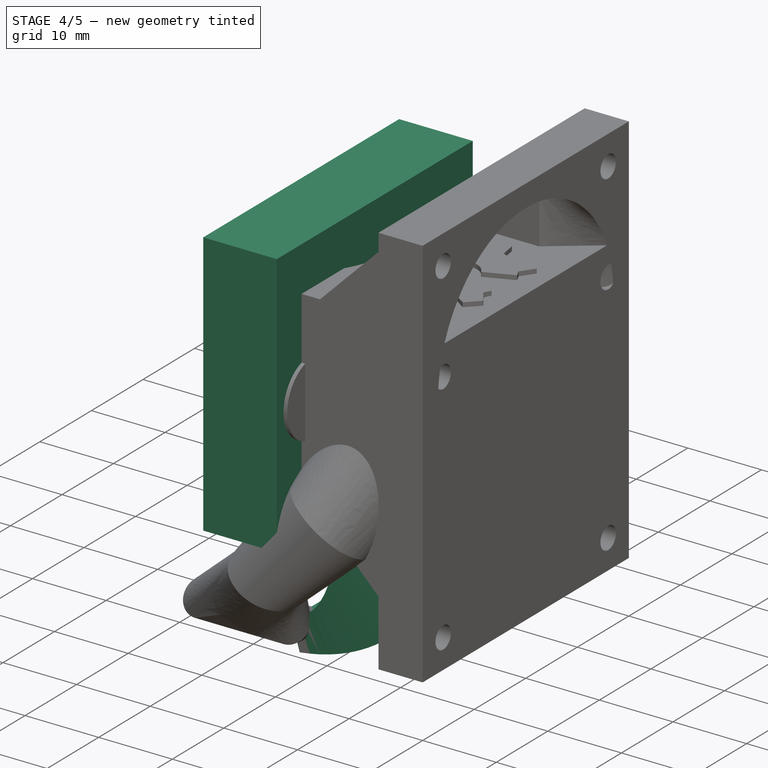
[diagram: stage 4 of 5 — iso view after this stage's code; geometry added in this stage tinted green]
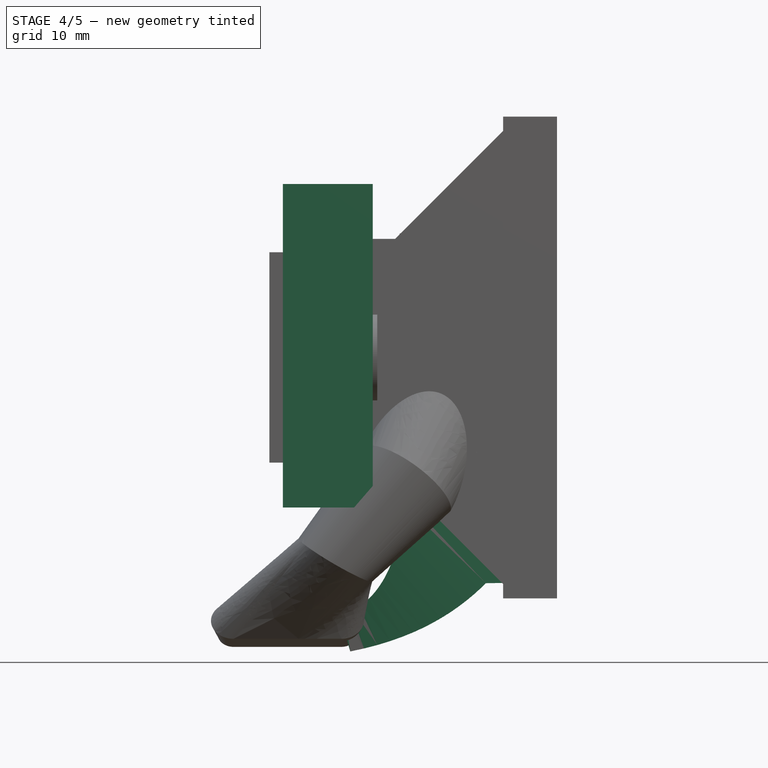
[diagram: stage 4 of 5 — front view after this stage's code; geometry added in this stage tinted green]
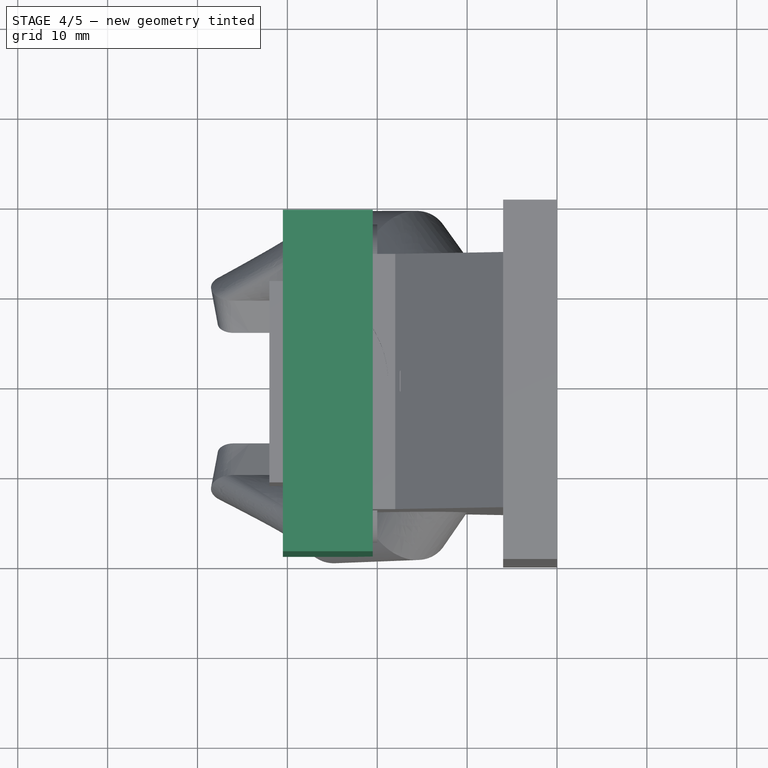
[diagram: stage 4 of 5 — top view after this stage's code; geometry added in this stage tinted green]
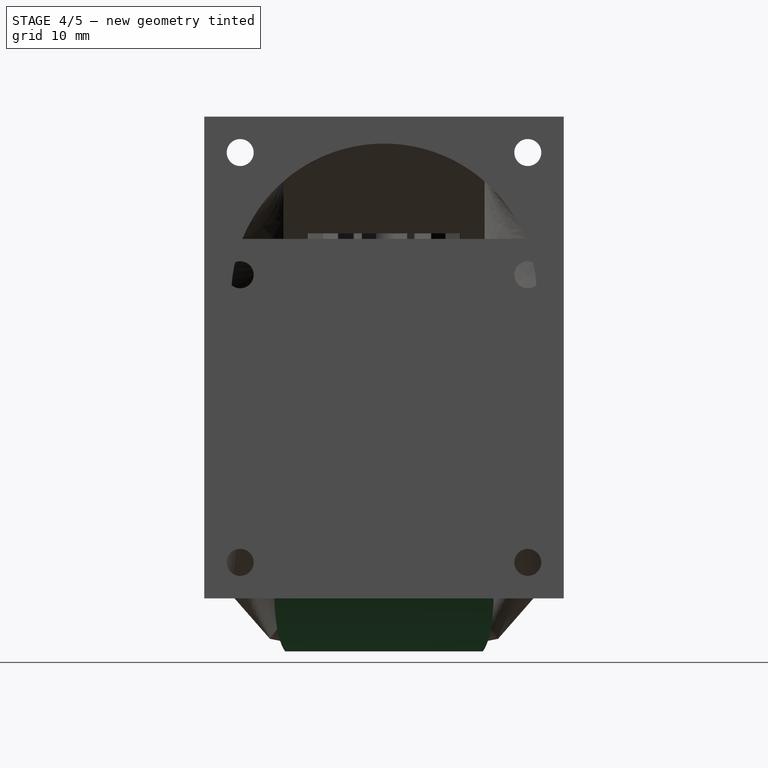
[diagram: stage 4 of 5 — right view after this stage's code; geometry added in this stage tinted green]
FEATURE [Sketcher::SketchObject] Sketch039
  Placement = pos=(6,0,25.5) rot=(0.678598,-0.678598,-0.281085;2.59356rad)
  Support = -> Chamfer [Face3]
  sketch-geometry (4):
    g0: LineSegment StartX=-11.2 StartY=-11 StartZ=0 EndX=11.2 EndY=-11 EndZ=0
    g1: LineSegment StartX=11.2 StartY=-11 StartZ=0 EndX=11.2 EndY=-23 EndZ=0
    g2: LineSegment StartX=11.2 StartY=-23 StartZ=0 EndX=-11.2 EndY=-23 EndZ=0
    g3: LineSegment StartX=-11.2 StartY=-23 StartZ=0 EndX=-11.2 EndY=-11 EndZ=0
  constraints (11):
    c: Coincident(g0,g1)
    c: Coincident(g1,g2)
    c: Coincident(g2,g3)
    c: Coincident(g3,g0)
    c: Horizontal(g0)
    c: Horizontal(g2)
    c: Vertical(g1)
    c: Vertical(g3)
    c: Symmetric(g1,g2,g-2)
    c: Distance(g2) = 22.4
    c: Distance(g1) = 12
FEATURE [Sketcher::SketchObject] Sketch041
  Placement = pos=(7,0,0) rot=(0.624695,-0.624695,-0.468521;2.26457rad)
  sketch-geometry (4):
    g0: LineSegment StartX=-10 StartY=1 StartZ=0 EndX=10 EndY=1 EndZ=0
    g1: LineSegment StartX=10 StartY=1 StartZ=0 EndX=10 EndY=3 EndZ=0
    g2: LineSegment StartX=10 StartY=3 StartZ=0 EndX=-10 EndY=3 EndZ=0
    g3: LineSegment StartX=-10 StartY=3 StartZ=0 EndX=-10 EndY=1 EndZ=0
  constraints (12):
    c: Coincident(g0,g1)
    c: Coincident(g1,g2)
    c: Coincident(g2,g3)
    c: Coincident(g3,g0)
    c: Horizontal(g0)
    c: Horizontal(g2)
    c: Vertical(g1)
    c: Vertical(g3)
    c: Symmetric(g0,g0,g-2)
    c: DistanceY(g-1,g0) = 1
    c: Distance(g1) = 2
    c: Distance(g0) = 20
FEATURE [Sketcher::SketchObject] Sketch042
  Placement = pos=(7,0,0) rot=(0.624695,-0.624695,-0.468521;2.26457rad)
  sketch-geometry (4):
    g0: LineSegment StartX=-11 StartY=0 StartZ=0 EndX=11 EndY=0 EndZ=0
    g1: LineSegment StartX=11 StartY=0 StartZ=0 EndX=11 EndY=4 EndZ=0
    g2: LineSegment StartX=11 StartY=4 StartZ=0 EndX=-11 EndY=4 EndZ=0
    g3: LineSegment StartX=-11 StartY=4 StartZ=0 EndX=-11 EndY=0 EndZ=0
  constraints (12):
    c: Coincident(g0,g1)
    c: Coincident(g1,g2)
    c: Coincident(g2,g3)
    c: Coincident(g3,g0)
    c: Horizontal(g0)
    c: Horizontal(g2)
    c: Vertical(g1)
    c: Vertical(g3)
    c: Symmetric(g0,g0,g-2)
    c: DistanceY(g-1,g0) = 0
    c: Distance(g1) = 4
    c: Distance(g0) = 22
FEATURE [Sketcher::SketchObject] Sketch043
  Placement = pos=(11,0,1) rot=(0.656096,-0.656096,-0.372928;2.42601rad)
  sketch-geometry (4):
    g0: LineSegment StartX=-10.5 StartY=1 StartZ=0 EndX=10.5 EndY=1 EndZ=0
    g1: LineSegment StartX=10.5 StartY=1 StartZ=0 EndX=10.5 EndY=4 EndZ=0
    g2: LineSegment StartX=10.5 StartY=4 StartZ=0 EndX=-10.5 EndY=4 EndZ=0
    g3: LineSegment StartX=-10.5 StartY=4 StartZ=0 EndX=-10.5 EndY=1 EndZ=0
  constraints (12):
    c: Coincident(g0,g1)
    c: Coincident(g1,g2)
    c: Coincident(g2,g3)
    c: Coincident(g3,g0)
    c: Horizontal(g0)
    c: Horizontal(g2)
    c: Vertical(g1)
    c: Vertical(g3)
    c: Symmetric(g0,g0,g-2)
    c: DistanceY(g-1,g0) = 1
    c: Distance(g1) = 3
    c: Distance(g0) = 21
FEATURE [Sketcher::SketchObject] Sketch044
  Placement = pos=(11,0,1) rot=(0.65584,-0.65584,-0.373829;2.42601rad)
  sketch-geometry (4):
    g0: LineSegment StartX=-11.5 StartY=0 StartZ=0 EndX=11.5 EndY=0 EndZ=0
    g1: LineSegment StartX=11.5 StartY=0 StartZ=0 EndX=11.5 EndY=5 EndZ=0
    g2: LineSegment StartX=11.5 StartY=5 StartZ=0 EndX=-11.5 EndY=5 EndZ=0
    g3: LineSegment StartX=-11.5 StartY=5 StartZ=0 EndX=-11.5 EndY=0 EndZ=0
  constraints (12):
    c: Coincident(g0,g1)
    c: Coincident(g1,g2)
    c: Coincident(g2,g3)
    c: Coincident(g3,g0)
    c: Horizontal(g0)
    c: Horizontal(g2)
    c: Vertical(g1)
    c: Vertical(g3)
    c: Symmetric(g0,g0,g-2)
    c: DistanceY(g-1,g0) = 0
    c: Distance(g1) = 5
    c: Distance(g0) = 23
FEATURE [Sketcher::SketchObject] Sketch045
  Placement = pos=(6,0,25.5) rot=(0.678598,-0.678598,-0.281085;2.59356rad)
  Support = -> Chamfer [Face3]
  sketch-geometry (4):
    g0: LineSegment StartX=-11.2 StartY=-11 StartZ=0 EndX=11.2 EndY=-11 EndZ=0
    g1: LineSegment StartX=11.2 StartY=-11 StartZ=0 EndX=11.2 EndY=-23 EndZ=0
    g2: LineSegment StartX=11.2 StartY=-23 StartZ=0 EndX=-11.2 EndY=-23 EndZ=0
    g3: LineSegment StartX=-11.2 StartY=-23 StartZ=0 EndX=-11.2 EndY=-11 EndZ=0
  constraints (11):
    c: Coincident(g0,g1)
    c: Coincident(g1,g2)
    c: Coincident(g2,g3)
    c: Coincident(g3,g0)
    c: Horizontal(g0)
    c: Horizontal(g2)
    c: Vertical(g1)
    c: Vertical(g3)
    c: Symmetric(g1,g2,g-2)
    c: Distance(g2) = 22.4
    c: Distance(g1) = 12
FEATURE [Sketcher::SketchObject] Sketch046
  Placement = pos=(6,0,25.5) rot=(0.678598,-0.678598,-0.281085;2.59356rad)
  Support = -> Chamfer [Face3]
  sketch-geometry (4):
    g0: LineSegment StartX=-12.2 StartY=-10 StartZ=0 EndX=12.2 EndY=-10 EndZ=0
    g1: LineSegment StartX=12.2 StartY=-10 StartZ=0 EndX=12.2 EndY=-24 EndZ=0
    g2: LineSegment StartX=12.2 StartY=-24 StartZ=0 EndX=-12.2 EndY=-24 EndZ=0
    g3: LineSegment StartX=-12.2 StartY=-24 StartZ=0 EndX=-12.2 EndY=-10 EndZ=0
  constraints (11):
    c: Coincident(g0,g1)
    c: Coincident(g1,g2)
    c: Coincident(g2,g3)
    c: Coincident(g3,g0)
    c: Horizontal(g0)
    c: Horizontal(g2)
    c: Vertical(g1)
    c: Vertical(g3)
    c: Symmetric(g1,g2,g-2)
    c: Distance(g2) = 24.4
    c: Distance(g1) = 14
FEATURE [Part::Loft] Loft
  Closed = false
  Ruled = false
  Sections = -> [Sketch041,Sketch043,Sketch045]
  Solid = true
FEATURE [Part::Loft] Loft001
  Closed = false
  Ruled = false
  Sections = -> [Sketch042,Sketch044,Sketch046]
  Solid = true
FEATURE [Part::Cut] Cut
  Base = -> Loft001
  Tool = -> Loft
FEATURE [Part::MultiFuse] Fusion001  label="MainBlock+Nozzle00"
  Shapes = -> [Cut,Cut001]
FEATURE [Part::MultiFuse] Fusion003  label="MainBlock+Nozzle000"
  Shapes = -> [Extrude001,Fusion001]
FEATURE [Part::Box] Box  label="Cube"
  Height = 36
  Length = 10
  Placement = pos=(-0.5,-19,16) rot=(0,0,1;0rad)
  Width = 38
FEATURE [App::DocumentObjectGroup] Group002  label="Clip"
  Group = -> [Pad004,Pocket002,Pad001,Cut003]
FEATURE [Part::Chamfer] Chamfer001  label="MainBlock+Nozzle01"
  Base = -> Fusion003
  Edges = 2 edges r=1.3: [Edge286,Edge288]
FEATURE [Part::Chamfer] Chamfer002  label="MainBlock+Nozzle02"
  Base = -> Chamfer001
  Edges = 1 edges r=0.95: [Edge166]
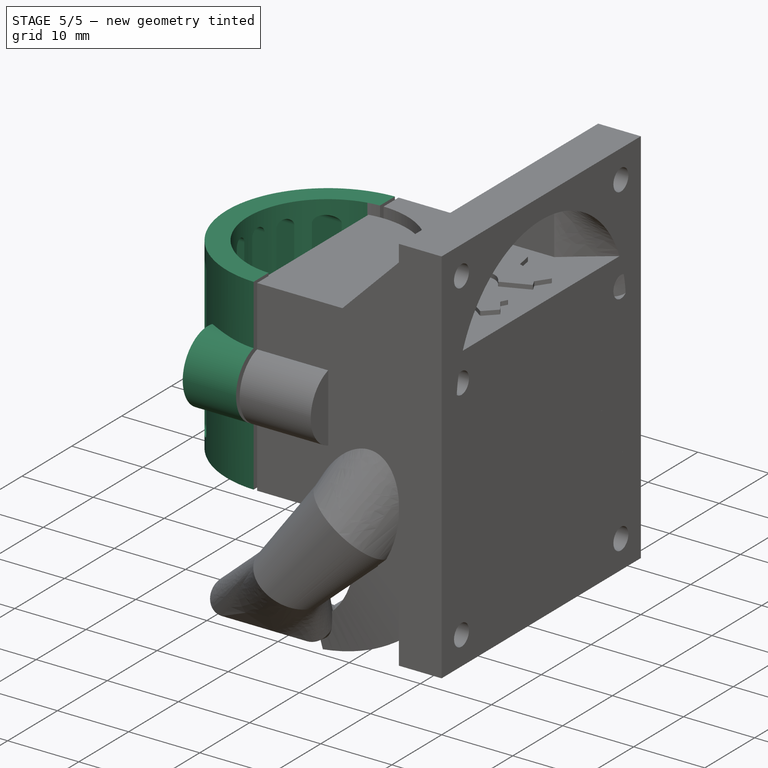
[diagram: stage 5 of 5 — iso view after this stage's code; geometry added in this stage tinted green]
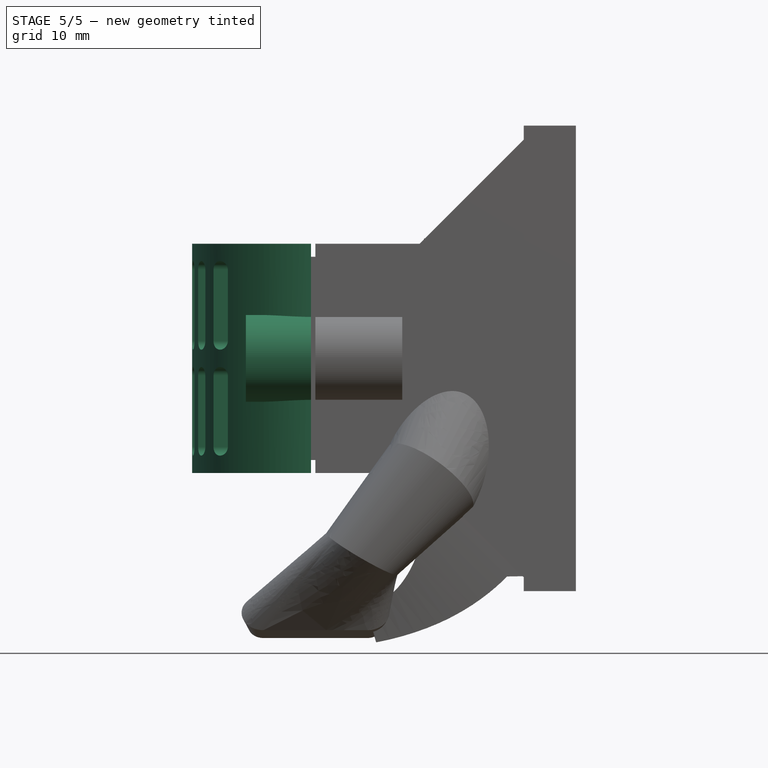
[diagram: stage 5 of 5 — front view after this stage's code; geometry added in this stage tinted green]
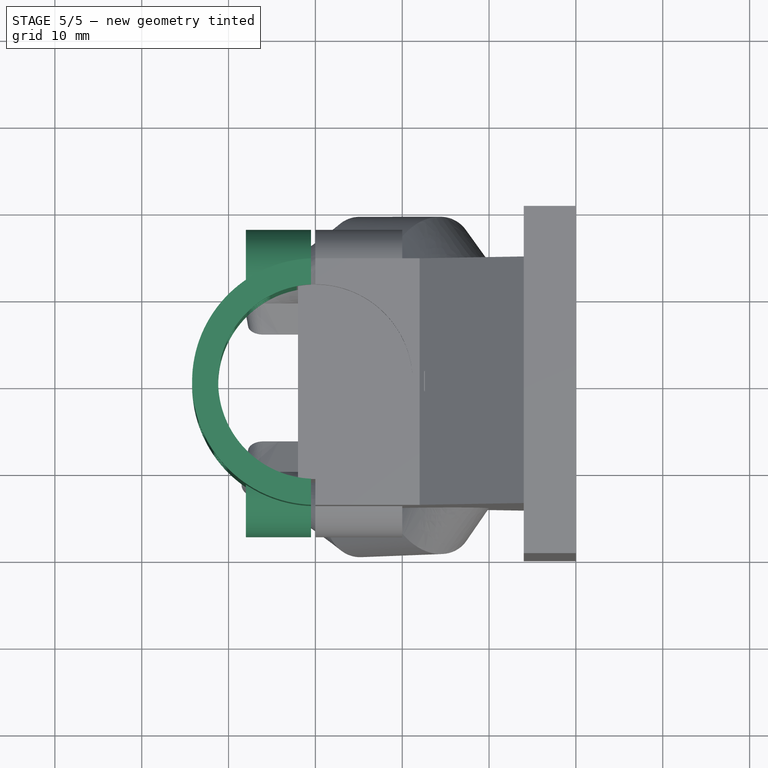
[diagram: stage 5 of 5 — top view after this stage's code; geometry added in this stage tinted green]
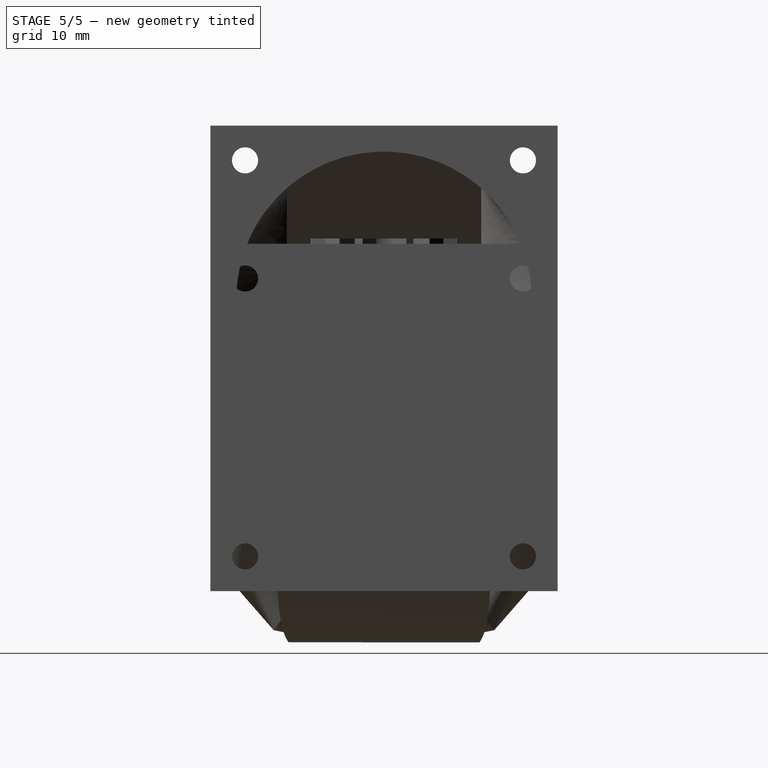
[diagram: stage 5 of 5 — right view after this stage's code; geometry added in this stage tinted green]
FEATURE [Sketcher::SketchObject] Sketch031  label="MainBody001"
  Placement = pos=(0,0,19.5) rot=(0,0,1;3.14159rad)
  sketch-geometry (5):
    g0: ArcOfCircle CenterX=0 CenterY=0 CenterZ=0 NormalX=0 NormalY=0 NormalZ=1 Radius=11.2 StartAngle=4.71239 EndAngle=7.85398
    g1: LineSegment [constr] StartX=5e-12 StartY=11.2 StartZ=0 EndX=5e-12 EndY=-11.2 EndZ=0
    g2: LineSegment StartX=5e-12 StartY=11.2 StartZ=0 EndX=7e-12 EndY=14.2 EndZ=0
    g3: ArcOfCircle CenterX=0 CenterY=0 CenterZ=0 NormalX=0 NormalY=0 NormalZ=1 Radius=14.2 StartAngle=4.71239 EndAngle=7.85398
    g4: LineSegment StartX=5e-12 StartY=-11.2 StartZ=0 EndX=4e-12 EndY=-14.2 EndZ=0
  constraints (14):
    c: Coincident(g0,g-1)
    c: Radius(g0) = 11.2
    c: Coincident(g1,g0)
    c: Vertical(g1)
    c: Coincident(g1,g0)
    c: PointOnObject(g0,g-2)
    c: Coincident(g2,g0)
    c: PointOnObject(g2,g-2)
    c: Coincident(g3,g-1)
    c: Radius(g3) = 14.2
    c: Coincident(g2,g3)
    c: Coincident(g4,g0)
    c: Coincident(g4,g3)
    c: PointOnObject(g3,g-2)
FEATURE [Part::Feature] Face  label="OSHW_logoBIG"
  Placement = pos=(-46.7274,-8.16463,0) rot=(0,0,1;0rad)
  shape: bbox 37.79 x 34.01 x 2e-07 mm, 1 faces, 0 solids (baked)
FEATURE [Sketcher::SketchObject] Sketch032  label="MainBody002"
  Placement = pos=(0,0,19.5) rot=(1,0,0;3.14159rad)
  Support = -> Pad [Face11]
  sketch-geometry (4):
    g0: LineSegment StartX=30 StartY=20 StartZ=0 EndX=30 EndY=-20 EndZ=0
    g1: LineSegment StartX=30 StartY=-20 StartZ=0 EndX=24 EndY=-20 EndZ=0
    g2: LineSegment StartX=30 StartY=20 StartZ=0 EndX=24 EndY=20 EndZ=0
    g3: LineSegment StartX=24 StartY=20 StartZ=0 EndX=24 EndY=-20 EndZ=0
  constraints (11):
    c: Symmetric(g0,g0,g-1)
    c: Distance(g0) = 40
    c: Coincident(g1,g0)
    c: Horizontal(g1)
    c: Distance(g1) = 6
    c: Coincident(g2,g0)
    c: Horizontal(g2)
    c: DistanceX(g0) = 30
    c: Equal(g1,g2)
    c: Coincident(g3,g2)
    c: Coincident(g3,g1)
FEATURE [PartDesign::Pad] Pad001
  Length = 26.4
  Length2 = 100
  Placement = pos=(0,0,19.5) rot=(0,0,1;3.14159rad)
  Sketch = -> Sketch031
  Type = 0
FEATURE [Sketcher::SketchObject] Sketch036
  Placement = pos=(0,0,19.5) rot=(0.57735,0.57735,0.57735;2.0944rad)
  Support = -> Pad001 [Face2]
  sketch-geometry (6):
    g0: LineSegment [constr] StartX=-14.2 StartY=13.2 StartZ=0 EndX=14.2 EndY=13.2 EndZ=0
    g1: ArcOfCircle CenterX=-12.7 CenterY=13.2 CenterZ=0 NormalX=0 NormalY=0 NormalZ=1 Radius=5 StartAngle=1.2661 EndAngle=5.01708
    g2: LineSegment StartX=-11.2 StartY=17.9697 StartZ=0 EndX=-11.2 EndY=8.4303 EndZ=0
    g3: ArcOfCircle CenterX=12.7 CenterY=13.2 CenterZ=0 NormalX=0 NormalY=0 NormalZ=1 Radius=5 StartAngle=4.4077 EndAngle=8.15867
    g4: LineSegment StartX=11.2 StartY=17.9697 StartZ=0 EndX=11.2 EndY=8.4303 EndZ=0
    g5: LineSegment [constr] StartX=-11.2 StartY=17.9697 StartZ=0 EndX=11.2 EndY=17.9697 EndZ=0
  constraints (18):
    c: Horizontal(g0)
    c: Symmetric(g0,g0,g-2)
    c: DistanceY(g0) = 13.2
    c: Distance(g0) = 28.4
    c: PointOnObject(g1,g0)
    c: Coincident(g2,g1)
    c: Vertical(g2)
    c: Coincident(g1,g2)
    c: Radius(g1) = 5
    c: PointOnObject(g3,g0)
    c: Coincident(g4,g3)
    c: Coincident(g4,g3)
    c: Vertical(g4)
    c: Equal(g3,g1)
    c: Coincident(g5,g1)
    c: Coincident(g5,g3)
    c: Horizontal(g5)
    c: Distance(g5) = 22.4
FEATURE [PartDesign::Pad] Pad004
  Length = 8
  Length2 = 100
  Placement = pos=(0,0,19.5) rot=(0,0,1;3.14159rad)
  Reversed = true
  Sketch = -> Sketch036
  Type = 0
FEATURE [Sketcher::SketchObject] Sketch037
  Placement = pos=(0,0,19.5) rot=(0.57735,0.57735,0.57735;2.0944rad)
  Support = -> Pad004 [Face9]
  sketch-geometry (69):
    g0: LineSegment [constr] StartX=-14.2 StartY=13.2 StartZ=0 EndX=14.2 EndY=13.2 EndZ=0
    g1: Circle CenterX=-14.2 CenterY=13.2 CenterZ=0 NormalX=0 NormalY=0 NormalZ=1 Radius=1.75
    g2: Circle CenterX=14.2 CenterY=13.2 CenterZ=0 NormalX=0 NormalY=0 NormalZ=1 Radius=1.75
    g3: ArcOfCircle [constr] CenterX=-12.7 CenterY=13.2 CenterZ=0 NormalX=0 NormalY=0 NormalZ=1 Radius=5 StartAngle=1.2661 EndAngle=5.01708
    g4: LineSegment [constr] StartX=-11.2 StartY=17.9697 StartZ=0 EndX=-11.2 EndY=8.4303 EndZ=0
    g5: ArcOfCircle [constr] CenterX=12.7 CenterY=13.2 CenterZ=0 NormalX=0 NormalY=0 NormalZ=1 Radius=5 StartAngle=4.4077 EndAngle=8.15867
    g6: LineSegment [constr] StartX=11.2 StartY=17.9697 StartZ=0 EndX=11.2 EndY=8.4303 EndZ=0
    g7: LineSegment [constr] StartX=-11.2 StartY=17.9697 StartZ=0 EndX=11.2 EndY=17.9697 EndZ=0
    g8: ArcOfCircle CenterX=-9 CenterY=11.2 CenterZ=0 NormalX=0 NormalY=0 NormalZ=1 Radius=1 StartAngle=1.12276e-05 EndAngle=3.14158
    g9: ArcOfCircle CenterX=-9 CenterY=3 CenterZ=0 NormalX=0 NormalY=0 NormalZ=1 Radius=1 StartAngle=3.14159 EndAngle=6.28319
    g10: LineSegment StartX=-10 StartY=11.2 StartZ=0 EndX=-10 EndY=3 EndZ=0
    g11: LineSegment StartX=-8 StartY=11.2 StartZ=0 EndX=-8 EndY=3 EndZ=0
    g12: ArcOfCircle CenterX=-5.4 CenterY=11.2 CenterZ=0 NormalX=0 NormalY=0 NormalZ=1 Radius=1 StartAngle=1.12275e-05 EndAngle=3.14158
    g13: ArcOfCircle CenterX=-5.4 CenterY=3 CenterZ=0 NormalX=0 NormalY=0 NormalZ=1 Radius=1 StartAngle=3.14159 EndAngle=6.28319
    g14: LineSegment StartX=-6.4 StartY=11.2 StartZ=0 EndX=-6.4 EndY=3 EndZ=0
    g15: LineSegment StartX=-4.4 StartY=11.2 StartZ=0 EndX=-4.4 EndY=3 EndZ=0
    g16: ArcOfCircle CenterX=-1.8 CenterY=11.2 CenterZ=0 NormalX=0 NormalY=0 NormalZ=1 Radius=1 StartAngle=1.12275e-05 EndAngle=3.14158
    g17: ArcOfCircle CenterX=-1.8 CenterY=3 CenterZ=0 NormalX=0 NormalY=0 NormalZ=1 Radius=1 StartAngle=3.14159 EndAngle=6.28319
    g18: LineSegment StartX=-2.8 StartY=11.2 StartZ=0 EndX=-2.8 EndY=3 EndZ=0
    g19: LineSegment StartX=-0.8 StartY=11.2 StartZ=0 EndX=-0.8 EndY=3 EndZ=0
    g20: ArcOfCircle CenterX=1.8 CenterY=11.2 CenterZ=0 NormalX=0 NormalY=0 NormalZ=1 Radius=1 StartAngle=1.12275e-05 EndAngle=3.14158
    g21: ArcOfCircle CenterX=1.8 CenterY=3 CenterZ=0 NormalX=0 NormalY=0 NormalZ=1 Radius=1 StartAngle=3.14159 EndAngle=6.28319
    g22: LineSegment StartX=0.8 StartY=11.2 StartZ=0 EndX=0.8 EndY=3 EndZ=0
    g23: LineSegment StartX=2.8 StartY=11.2 StartZ=0 EndX=2.8 EndY=3 EndZ=0
    g24: ArcOfCircle CenterX=5.4 CenterY=11.2 CenterZ=0 NormalX=0 NormalY=0 NormalZ=1 Radius=1 StartAngle=1.12275e-05 EndAngle=3.14158
    g25: ArcOfCircle CenterX=5.4 CenterY=3 CenterZ=0 NormalX=0 NormalY=0 NormalZ=1 Radius=1 StartAngle=3.14159 EndAngle=6.28319
    g26: LineSegment StartX=4.4 StartY=11.2 StartZ=0 EndX=4.4 EndY=3 EndZ=0
    g27: LineSegment StartX=6.4 StartY=11.2 StartZ=0 EndX=6.4 EndY=3 EndZ=0
    g28: ArcOfCircle CenterX=9 CenterY=11.2 CenterZ=0 NormalX=0 NormalY=0 NormalZ=1 Radius=1 StartAngle=1.12281e-05 EndAngle=3.14158
    g29: ArcOfCircle CenterX=9 CenterY=3 CenterZ=0 NormalX=0 NormalY=0 NormalZ=1 Radius=1 StartAngle=3.14159 EndAngle=6.28319
    g30: LineSegment StartX=8 StartY=11.2 StartZ=0 EndX=8 EndY=3 EndZ=0
    g31: LineSegment StartX=10 StartY=11.2 StartZ=0 EndX=10 EndY=3 EndZ=0
    g32: LineSegment [constr] StartX=-9 StartY=11.2 StartZ=0 EndX=-5.4 EndY=11.2 EndZ=0
    g33: LineSegment [constr] StartX=-5.4 StartY=11.2 StartZ=0 EndX=-1.8 EndY=11.2 EndZ=0
    g34: LineSegment [constr] StartX=-1.8 StartY=11.2 StartZ=0 EndX=1.8 EndY=11.2 EndZ=0
    g35: LineSegment [constr] StartX=1.8 StartY=11.2 StartZ=0 EndX=5.4 EndY=11.2 EndZ=0
    g36: LineSegment [constr] StartX=5.4 StartY=11.2 StartZ=0 EndX=9 EndY=11.2 EndZ=0
    g37: LineSegment [constr] StartX=-10 StartY=3 StartZ=0 EndX=10 EndY=3 EndZ=0
    g38: ArcOfCircle CenterX=9 CenterY=15.2 CenterZ=0 NormalX=0 NormalY=0 NormalZ=1 Radius=1 StartAngle=3.14161 EndAngle=6.28317
    g39: ArcOfCircle CenterX=5.4 CenterY=15.2 CenterZ=0 NormalX=0 NormalY=0 NormalZ=1 Radius=1 StartAngle=3.14161 EndAngle=6.28317
    g40: LineSegment [constr] StartX=9 StartY=15.2 StartZ=0 EndX=5.4 EndY=15.2 EndZ=0
    g41: ArcOfCircle CenterX=1.8 CenterY=15.2 CenterZ=0 NormalX=0 NormalY=0 NormalZ=1 Radius=1 StartAngle=3.14161 EndAngle=6.28317
    g42: ArcOfCircle CenterX=-1.8 CenterY=15.2 CenterZ=0 NormalX=0 NormalY=0 NormalZ=1 Radius=1 StartAngle=3.14161 EndAngle=6.28317
    g43: LineSegment [constr] StartX=-1.8 StartY=15.2 StartZ=0 EndX=1.8 EndY=15.2 EndZ=0
    g44: LineSegment [constr] StartX=1.8 StartY=15.2 StartZ=0 EndX=5.4 EndY=15.2 EndZ=0
    g45: LineSegment [constr] StartX=-1.8 StartY=15.2 StartZ=0 EndX=-5.4 EndY=15.2 EndZ=0
    g46: LineSegment [constr] StartX=-5.4 StartY=15.2 StartZ=0 EndX=-9 EndY=15.2 EndZ=0
    g47: ArcOfCircle CenterX=-9 CenterY=15.2 CenterZ=0 NormalX=0 NormalY=0 NormalZ=1 Radius=1 StartAngle=3.14161 EndAngle=6.28317
    g48: ArcOfCircle CenterX=-5.4 CenterY=15.2 CenterZ=0 NormalX=0 NormalY=0 NormalZ=1 Radius=1 StartAngle=3.14161 EndAngle=6.28317
    g49: LineSegment StartX=-10 StartY=15.2 StartZ=0 EndX=-10 EndY=23.4 EndZ=0
    g50: LineSegment StartX=-8 StartY=15.2 StartZ=0 EndX=-8 EndY=23.4 EndZ=0
    g51: LineSegment StartX=-6.4 StartY=15.2 StartZ=0 EndX=-6.4 EndY=23.4 EndZ=0
    g52: LineSegment StartX=-4.4 StartY=15.2 StartZ=0 EndX=-4.4 EndY=23.4 EndZ=0
    g53: LineSegment [constr] StartX=9 StartY=15.2 StartZ=0 EndX=9 EndY=11.2 EndZ=0
    g54: LineSegment [constr] StartX=-9 StartY=15.2 StartZ=0 EndX=-9 EndY=11.2 EndZ=0
    g55: LineSegment StartX=-2.8 StartY=15.2 StartZ=0 EndX=-2.8 EndY=23.4 EndZ=0
    g56: LineSegment StartX=-0.8 StartY=15.2 StartZ=0 EndX=-0.8 EndY=23.4 EndZ=0
    g57: LineSegment StartX=0.8 StartY=15.2 StartZ=0 EndX=0.8 EndY=23.4 EndZ=0
    g58: LineSegment StartX=2.8 StartY=15.2 StartZ=0 EndX=2.8 EndY=23.4 EndZ=0
    g59: LineSegment StartX=4.4 StartY=15.2 StartZ=0 EndX=4.4 EndY=23.4 EndZ=0
    g60: LineSegment StartX=6.4 StartY=15.2 StartZ=0 EndX=6.4 EndY=23.4 EndZ=0
    g61: LineSegment StartX=8 StartY=15.2 StartZ=0 EndX=8 EndY=23.4 EndZ=0
    g62: LineSegment StartX=10 StartY=15.2 StartZ=0 EndX=10 EndY=23.4 EndZ=0
    g63: ArcOfCircle CenterX=-9 CenterY=23.4 CenterZ=0 NormalX=0 NormalY=0 NormalZ=1 Radius=1 StartAngle=6.28319 EndAngle=9.42478
    g64: ArcOfCircle CenterX=-5.4 CenterY=23.4 CenterZ=0 NormalX=0 NormalY=0 NormalZ=1 Radius=1 StartAngle=2.15413e-07 EndAngle=3.14159
    g65: ArcOfCircle CenterX=-1.8 CenterY=23.4 CenterZ=0 NormalX=0 NormalY=0 NormalZ=1 Radius=1 StartAngle=6.28319 EndAngle=9.42478
    g66: ArcOfCircle CenterX=1.8 CenterY=23.4 CenterZ=0 NormalX=0 NormalY=0 NormalZ=1 Radius=1 StartAngle=1.548e-09 EndAngle=3.14159
    g67: ArcOfCircle CenterX=5.4 CenterY=23.4 CenterZ=0 NormalX=0 NormalY=0 NormalZ=1 Radius=1 StartAngle=1.7319e-08 EndAngle=3.14159
    g68: ArcOfCircle CenterX=9 CenterY=23.4 CenterZ=0 NormalX=0 NormalY=0 NormalZ=1 Radius=1 StartAngle=6.28319 EndAngle=9.42478
  constraints (214):
    c: Horizontal(g0)
    c: Symmetric(g0,g0,g-2)
    c: Coincident(g1,g0)
    c: Radius(g1) = 1.75
    c: Coincident(g2,g0)
    c: Equal(g2,g1)
    c: DistanceY(g0) = 13.2
    c: Distance(g0) = 28.4
    c: Coincident(g4,g3)
    c: Vertical(g4)
    c: Coincident(g3,g4)
    c: Radius(g3) = 5
    c: Coincident(g6,g5)
    c: Coincident(g6,g5)
    c: Vertical(g6)
    c: Equal(g5,g3)
    c: Coincident(g7,g3)
    c: Coincident(g7,g5)
    c: Horizontal(g7)
    c: Distance(g7) = 22.4
    c: Tangent(g8,g10)
    c: Tangent(g8,g11)
    c: Tangent(g9,g10)
    c: Tangent(g9,g11)
    c: Coincident(g8,g11)
    c: Coincident(g8,g10)
    c: Coincident(g10,g9)
    c: Coincident(g11,g9)
    c: Vertical(g10)
    c: Equal(g8,g9)
    c: Tangent(g12,g14)
    c: Tangent(g12,g15)
    c: Tangent(g13,g14)
    c: Tangent(g13,g15)
    c: Coincident(g12,g15)
    c: Coincident(g12,g14)
    c: Coincident(g14,g13)
    c: Coincident(g15,g13)
    c: Vertical(g14)
    c: Equal(g12,g13)
    c: Tangent(g16,g18)
    c: Tangent(g16,g19)
    c: Tangent(g17,g18)
    c: Tangent(g17,g19)
    c: Coincident(g16,g19)
    c: Coincident(g16,g18)
    c: Coincident(g18,g17)
    c: Coincident(g19,g17)
    c: Vertical(g18)
    c: Equal(g16,g17)
    c: Tangent(g20,g22)
    c: Tangent(g20,g23)
    c: Tangent(g21,g22)
    c: Tangent(g21,g23)
    c: Coincident(g20,g23)
    c: Coincident(g20,g22)
    c: Coincident(g22,g21)
    c: Coincident(g23,g21)
    c: Vertical(g22)
    c: Equal(g20,g21)
    c: Tangent(g24,g26)
    c: Tangent(g24,g27)
    c: Tangent(g25,g26)
    c: Tangent(g25,g27)
    c: Coincident(g24,g27)
    c: Coincident(g24,g26)
    c: Coincident(g26,g25)
    c: Coincident(g27,g25)
    c: Vertical(g26)
    c: Equal(g24,g25)
    c: Tangent(g28,g31)
    c: Tangent(g29,g30)
    c: Tangent(g29,g31)
    c: Coincident(g28,g31)
    c: Coincident(g28,g30)
    c: Coincident(g30,g29)
    c: Coincident(g31,g29)
    c: Vertical(g30)
    c: Equal(g28,g29)
    c: Tangent(g28,g30)
    c: Coincident(g32,g8)
    c: Coincident(g32,g12)
    c: Coincident(g33,g12)
    c: Coincident(g33,g16)
    c: Coincident(g34,g16)
    c: Coincident(g34,g20)
    c: Horizontal(g34)
    c: Coincident(g35,g20)
    c: Coincident(g35,g24)
    c: Horizontal(g35)
    c: Coincident(g36,g24)
    c: Coincident(g36,g28)
    c: Horizontal(g36)
    c: Horizontal(g33)
    c: Horizontal(g32)
    c: Equal(g36,g35)
    c: Equal(g35,g34)
    c: Equal(g34,g33)
    c: Equal(g33,g32)
    c: Equal(g9,g13)
    c: Equal(g13,g17)
    c: Equal(g17,g21)
    c: Equal(g21,g25)
    c: Equal(g25,g29)
    c: Equal(g10,g14)
    c: Equal(g14,g18)
    c: Equal(g18,g22)
    c: Equal(g22,g26)
    c: Equal(g26,g30)
    c: Coincident(g37,g9)
    c: Coincident(g37,g29)
    c: DistanceX(g-1,g9) = -10
    c: Radius(g8) = 1
    c: DistanceX(g29) = 10
    c: DistanceY(g8) = 11.2
    c: DistanceY(g9) = 3
    c: Coincident(g40,g38)
    c: Coincident(g40,g39)
    c: Horizontal(g40)
    c: Coincident(g43,g42)
    c: Coincident(g43,g41)
    c: Horizontal(g43)
    c: Coincident(g44,g41)
    c: Coincident(g44,g39)
    c: Horizontal(g44)
    c: Coincident(g45,g42)
    c: Horizontal(g45)
    c: Coincident(g46,g45)
    c: Horizontal(g46)
    c: Coincident(g47,g46)
    c: Coincident(g48,g45)
    c: Coincident(g49,g47)
    c: Vertical(g49)
    c: Coincident(g50,g47)
    c: Vertical(g50)
    c: Tangent(g50,g47)
    c: Tangent(g47,g49)
    c: Coincident(g51,g48)
    c: Vertical(g51)
    c: Coincident(g52,g48)
    c: Vertical(g52)
    c: Tangent(g48,g52)
    c: Tangent(g48,g51)
    c: Coincident(g53,g38)
    c: Coincident(g53,g28)
    c: Vertical(g53)
    c: Coincident(g54,g46)
    c: Coincident(g54,g8)
    c: Vertical(g54)
    c: Coincident(g55,g42)
    c: Vertical(g55)
    c: Coincident(g56,g42)
    c: Vertical(g56)
    c: Coincident(g57,g41)
    c: Vertical(g57)
    c: Coincident(g58,g41)
    c: Vertical(g58)
    c: Coincident(g59,g39)
    c: Vertical(g59)
    c: Coincident(g60,g39)
    c: Vertical(g60)
    c: Coincident(g61,g38)
    c: Vertical(g61)
    c: Coincident(g62,g38)
    c: Vertical(g62)
    c: Tangent(g42,g55)
    c: Tangent(g42,g56)
    c: Tangent(g41,g57)
    c: Tangent(g41,g58)
    c: Tangent(g39,g59)
    c: Tangent(g39,g60)
    c: Tangent(g38,g61)
    c: Tangent(g38,g62)
    c: Equal(g40,g44)
    c: Equal(g44,g43)
    c: Equal(g43,g45)
    c: Equal(g45,g46)
    c: Coincident(g63,g49)
    c: Coincident(g63,g50)
    c: Tangent(g63,g49)
    c: Tangent(g63,g50)
    c: Coincident(g64,g51)
    c: Coincident(g64,g52)
    c: Tangent(g64,g52)
    c: Tangent(g64,g51)
    c: Equal(g49,g51)
    c: Equal(g51,g55)
    c: Equal(g55,g57)
    c: Equal(g57,g59)
    c: Equal(g59,g61)
    c: Coincident(g65,g55)
    c: Coincident(g65,g56)
    c: Tangent(g65,g55)
    c: Tangent(g65,g56)
    c: Coincident(g66,g57)
    c: Coincident(g66,g58)
    c: Tangent(g66,g57)
    c: Tangent(g66,g58)
    c: Coincident(g67,g59)
    c: Coincident(g67,g60)
    c: Tangent(g67,g59)
    c: Tangent(g67,g60)
    c: Coincident(g68,g61)
    c: Coincident(g68,g62)
    c: Tangent(g68,g61)
    c: Tangent(g68,g62)
    c: Equal(g63,g64)
    c: Equal(g64,g65)
    c: Equal(g65,g66)
    c: Equal(g66,g67)
    c: Equal(g67,g68)
    c: Radius(g63) = 1
    c: Equal(g10,g49)
    c: Distance(g53) = 4
FEATURE [PartDesign::Pocket] Pocket002  label="VentedClip0"
  Length = 8
  Placement = pos=(0,0,19.5) rot=(0,0,1;3.14159rad)
  Sketch = -> Sketch037
  Type = 1
FEATURE [Part::MultiFuse] Fusion002
  Shapes = -> [Loft003,Loft004]
FEATURE [Part::Cut] Cut002  label="MainBlock_NoNozzle00"
  Base = -> Chamfer
  Tool = -> Fusion002
FEATURE [Part::Extrusion] Extrude
  Base = -> Scale001
  Dir = (0,0,1)
  Placement = pos=(0,0,-13.5) rot=(0,0,1;0rad)
  Solid = false
FEATURE [Part::MultiFuse] Fusion004  label="MainBlock_NoNozzle"
  Shapes = -> [Extrude,Cut002]
FEATURE [Part::Cut] Cut003  label="VentedClip01"
  Base = -> Pocket002
  Tool = -> Box
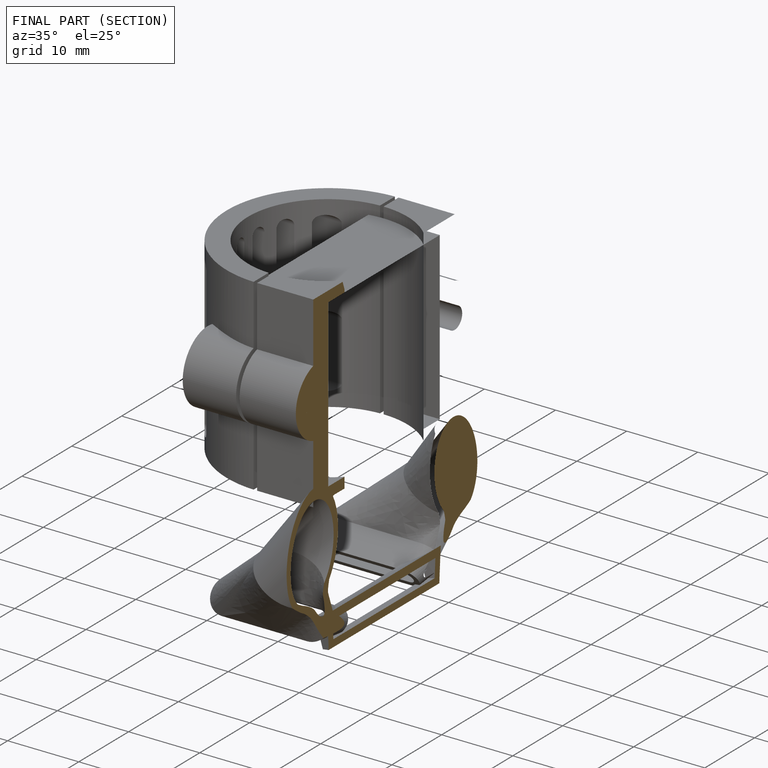
[diagram: finished part — half-section view (interior)]
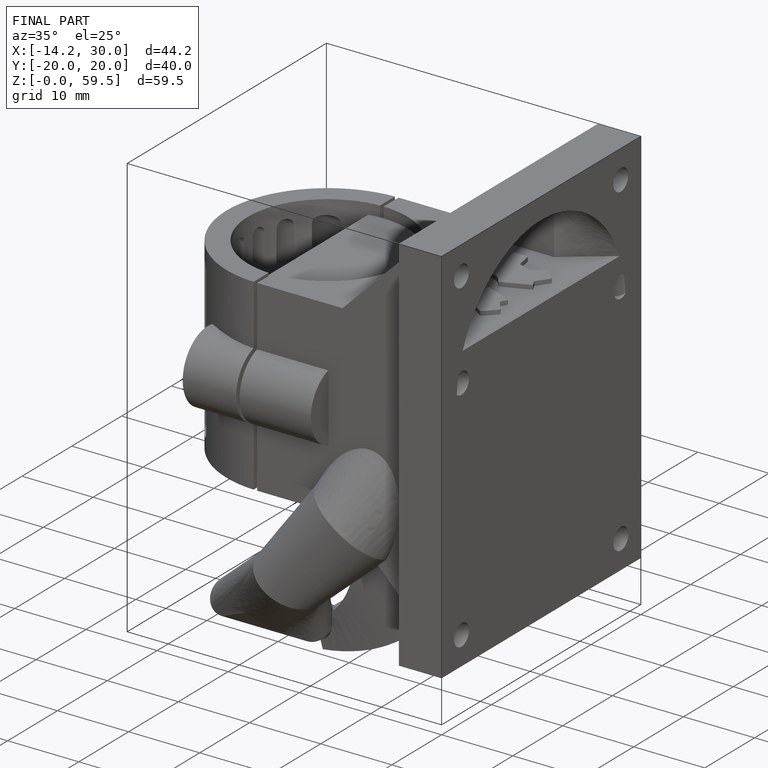
[diagram: finished part — iso view with bounding-box wireframe]
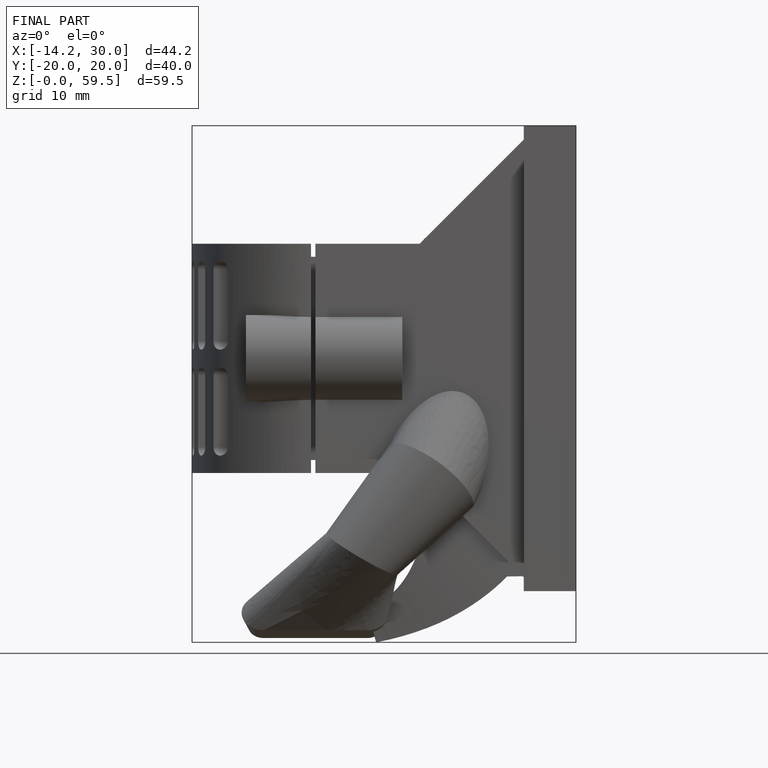
[diagram: finished part — front view with bounding-box wireframe]
